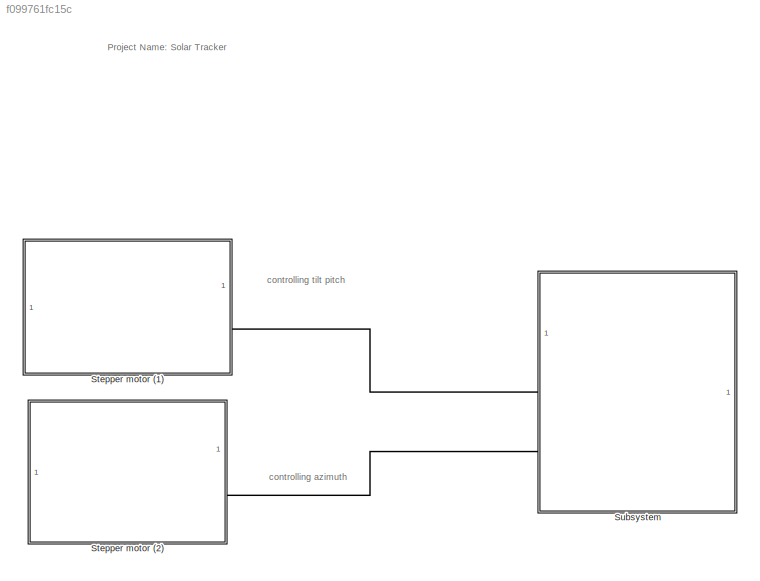
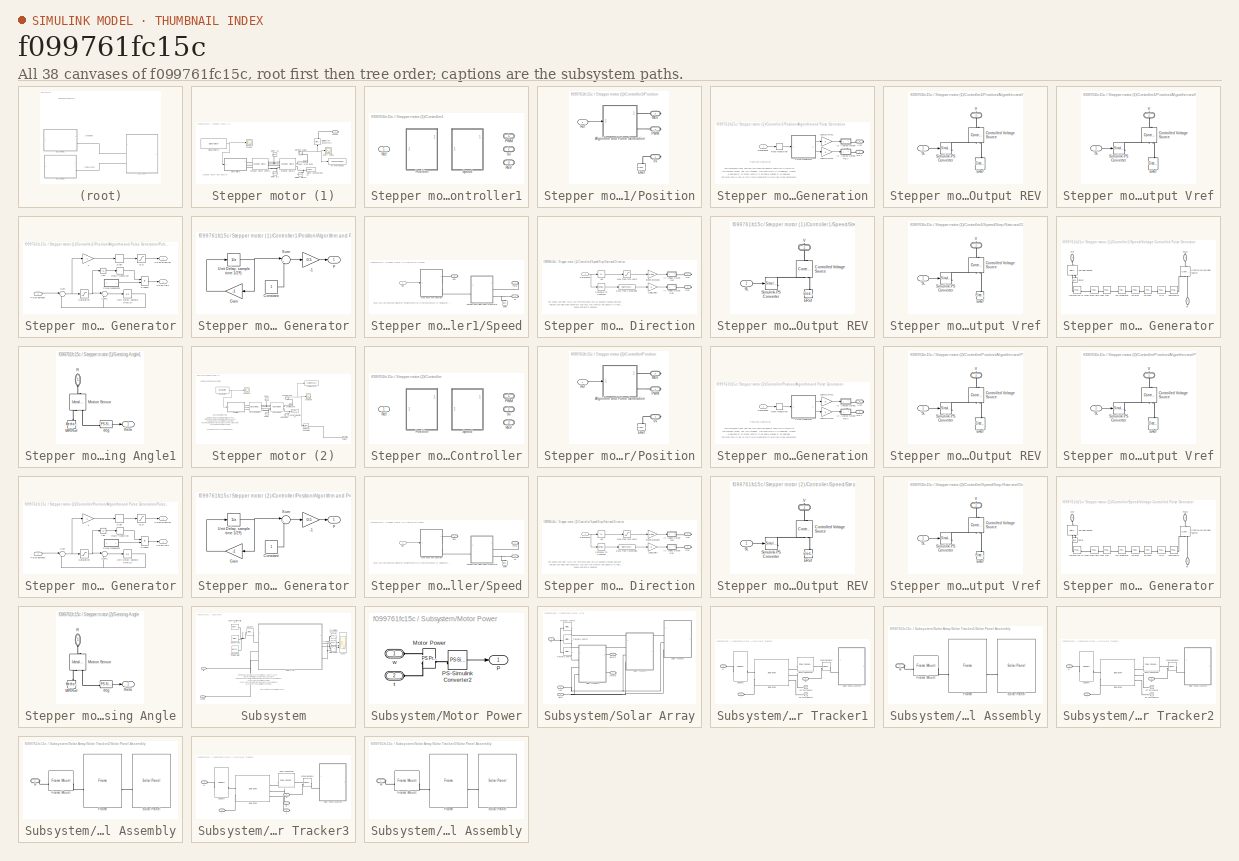
[diagram: thumbnail index - all 38 canvases of the model, root first then tree order]
MODEL slx_f099761fc15c
KIND model
CONFIG AbsTol = auto
CONFIG EnableMultiTasking = off
CONFIG FixedStep = auto
CONFIG MaxStep = 0.01
CONFIG MinStep = auto
CONFIG PreLoadFcn = addpath(fullfile('WormAndGearConstraintSupport','Data'));\naddpath(fullfile('WormAndGearConstraintSupport','Scripts'));
CONFIG RelTol = 1e-3
CONFIG SampleTimeConstraint = Unconstrained
CONFIG SolverName = ode45
CONFIG StartTime = 0.0
CONFIG StopTime = 24
WORKSPACE source: external: MATLAB File  (data not in archive)
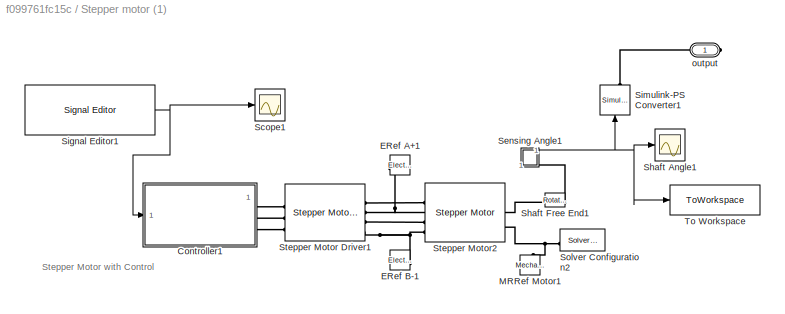
BLOCK [SubSystem] Stepper motor (1)
BLOCK [SubSystem] Stepper motor (1)/Controller1
  AttributesFormatString = %<BlockChoice>
  LabelModeActiveChoice = Position
  Variant = on
  VariantControlMode = label
BLOCK [PMIOPort] Stepper motor (1)/Controller1/0v
  Port = 2
  Side = Right
BLOCK [PMIOPort] Stepper motor (1)/Controller1/PWM
  Side = Right
BLOCK [SubSystem] Stepper motor (1)/Controller1/Position
  VariantControl = Position
BLOCK [PMIOPort] Stepper motor (1)/Controller1/Position/0v
  Port = 2
  Side = Right
BLOCK [SubSystem] Stepper motor (1)/Controller1/Position/Algorithm and Pulse Generation
BLOCK [SubSystem] Stepper motor (1)/Controller1/Position/Algorithm and Pulse Generation/IC Analog Output REV
BLOCK [Reference] Stepper motor (1)/Controller1/Position/Algorithm and Pulse Generation/IC Analog Output REV/Controlled Voltage Source  REF=fl_lib/Electrical/Electrical Sources/Controlled Voltage
Source
  NameLocation = right
  SourceBlock = fl_lib/Electrical/Electrical Sources/Controlled Voltage\nSource
  SourceType = Controlled Voltage\nSource
BLOCK [Reference] Stepper motor (1)/Controller1/Position/Algorithm and Pulse Generation/IC Analog Output REV/ERef  REF=fl_lib/Electrical/Electrical Elements/Electrical Reference
  NameLocation = right
  SourceBlock = fl_lib/Electrical/Electrical Elements/Electrical Reference
  SourceType = Electrical Reference
BLOCK [Inport] Stepper motor (1)/Controller1/Position/Algorithm and Pulse Generation/IC Analog Output REV/SL
BLOCK [Reference] Stepper motor (1)/Controller1/Position/Algorithm and Pulse Generation/IC Analog Output REV/Simulink-PS Converter  REF=nesl_utility/Simulink-PS
Converter
  SourceBlock = nesl_utility/Simulink-PS\nConverter
  SourceType = Simulink-PS\nConverter
BLOCK [PMIOPort] Stepper motor (1)/Controller1/Position/Algorithm and Pulse Generation/IC Analog Output REV/V
  NameLocation = right
  Side = Right
BLOCK [SubSystem] Stepper motor (1)/Controller1/Position/Algorithm and Pulse Generation/IC Analog Output Vref
  NameLocation = top
BLOCK [Reference] Stepper motor (1)/Controller1/Position/Algorithm and Pulse Generation/IC Analog Output Vref/Controlled Voltage Source  REF=fl_lib/Electrical/Electrical Sources/Controlled Voltage
Source
  NameLocation = right
  SourceBlock = fl_lib/Electrical/Electrical Sources/Controlled Voltage\nSource
  SourceType = Controlled Voltage\nSource
BLOCK [Reference] Stepper motor (1)/Controller1/Position/Algorithm and Pulse Generation/IC Analog Output Vref/ERef  REF=fl_lib/Electrical/Electrical Elements/Electrical Reference
  NameLocation = right
  SourceBlock = fl_lib/Electrical/Electrical Elements/Electrical Reference
  SourceType = Electrical Reference
BLOCK [Inport] Stepper motor (1)/Controller1/Position/Algorithm and Pulse Generation/IC Analog Output Vref/SL
BLOCK [Reference] Stepper motor (1)/Controller1/Position/Algorithm and Pulse Generation/IC Analog Output Vref/Simulink-PS Converter  REF=nesl_utility/Simulink-PS
Converter
  SourceBlock = nesl_utility/Simulink-PS\nConverter
  SourceType = Simulink-PS\nConverter
BLOCK [PMIOPort] Stepper motor (1)/Controller1/Position/Algorithm and Pulse Generation/IC Analog Output Vref/V
  NameLocation = right
  Side = Right
BLOCK [Gain] Stepper motor (1)/Controller1/Position/Algorithm and Pulse Generation/Logic2Volts1
  Gain = 5
  NameLocation = top
BLOCK [Gain] Stepper motor (1)/Controller1/Position/Algorithm and Pulse Generation/Logic2Volts2
  Gain = 5
BLOCK [SubSystem] Stepper motor (1)/Controller1/Position/Algorithm and Pulse Generation/Pulse Generator
BLOCK [Gain] Stepper motor (1)/Controller1/Position/Algorithm and Pulse Generation/Pulse Generator/-1
  Gain = -1
BLOCK [Abs] Stepper motor (1)/Controller1/Position/Algorithm and Pulse Generation/Pulse Generator/Abs
  SaturateOnIntegerOverflow = off
BLOCK [Product] Stepper motor (1)/Controller1/Position/Algorithm and Pulse Generation/Pulse Generator/Product
  InputSameDT = on
  OutDataTypeStr = Inherit: Same as first input
  SaturateOnIntegerOverflow = on
BLOCK [Inport] Stepper motor (1)/Controller1/Position/Algorithm and Pulse Generation/Pulse Generator/Pulse  demand
  SampleTime = 1/f
BLOCK [SubSystem] Stepper motor (1)/Controller1/Position/Algorithm and Pulse Generation/Pulse Generator/Pulse Generator
BLOCK [Gain] Stepper motor (1)/Controller1/Position/Algorithm and Pulse Generation/Pulse Generator/Pulse Generator/-1
  Gain = 0.5
BLOCK [Constant] Stepper motor (1)/Controller1/Position/Algorithm and Pulse Generation/Pulse Generator/Pulse Generator/Constant
  SampleTime = 1/(2*f)
BLOCK [Gain] Stepper motor (1)/Controller1/Position/Algorithm and Pulse Generation/Pulse Generator/Pulse Generator/Gain
  Gain = -1
BLOCK [Sum] Stepper motor (1)/Controller1/Position/Algorithm and Pulse Generation/Pulse Generator/Pulse Generator/Sum
  Inputs = |++
BLOCK [UnitDelay] Stepper motor (1)/Controller1/Position/Algorithm and Pulse Generation/Pulse Generator/Pulse Generator/Unit Delay, sample time 1//2*f)
  HasFrameUpgradeWarning = on
  InitialCondition = -1
  SampleTime = 1/(2*f)
BLOCK [Outport] Stepper motor (1)/Controller1/Position/Algorithm and Pulse Generation/Pulse Generator/Pulse Generator/p
  VectorParamsAs1DForOutWhenUnconnected = off
BLOCK [Outport] Stepper motor (1)/Controller1/Position/Algorithm and Pulse Generation/Pulse Generator/Pulse direction
  Port = 2
  VectorParamsAs1DForOutWhenUnconnected = off
BLOCK [Outport] Stepper motor (1)/Controller1/Position/Algorithm and Pulse Generation/Pulse Generator/Pulse train
  VectorParamsAs1DForOutWhenUnconnected = off
BLOCK [RateTransition] Stepper motor (1)/Controller1/Position/Algorithm and Pulse Generation/Pulse Generator/Rate Transition
  Deterministic = off
BLOCK [Saturate] Stepper motor (1)/Controller1/Position/Algorithm and Pulse Generation/Pulse Generator/Saturation
  LowerLimit = -1
  UpperLimit = 1
BLOCK [Signum] Stepper motor (1)/Controller1/Position/Algorithm and Pulse Generation/Pulse Generator/Sign
BLOCK [Sum] Stepper motor (1)/Controller1/Position/Algorithm and Pulse Generation/Pulse Generator/Sum
  Inputs = |+-
BLOCK [Sum] Stepper motor (1)/Controller1/Position/Algorithm and Pulse Generation/Pulse Generator/Sum1
  Inputs = |++
BLOCK [UnitDelay] Stepper motor (1)/Controller1/Position/Algorithm and Pulse Generation/Pulse Generator/Unit Delay, sample time 1//f
  HasFrameUpgradeWarning = on
  SampleTime = 1/f
BLOCK [Saturate] Stepper motor (1)/Controller1/Position/Algorithm and Pulse Generation/Pulse Generator/[0,1]
  LowerLimit = 0
  UpperLimit = 1
BLOCK [PMIOPort] Stepper motor (1)/Controller1/Position/Algorithm and Pulse Generation/REV
  Side = Right
BLOCK [RateTransition] Stepper motor (1)/Controller1/Position/Algorithm and Pulse Generation/Rate Transition
  Deterministic = off
  NameLocation = top
BLOCK [Inport] Stepper motor (1)/Controller1/Position/Algorithm and Pulse Generation/Reference
BLOCK [PMIOPort] Stepper motor (1)/Controller1/Position/Algorithm and Pulse Generation/Vref
  NameLocation = top
  Port = 2
  Side = Right
BLOCK [Reference] Stepper motor (1)/Controller1/Position/ERef  REF=fl_lib/Electrical/Electrical Elements/Electrical Reference
  NameLocation = left
  SourceBlock = fl_lib/Electrical/Electrical Elements/Electrical Reference
  SourceType = Electrical Reference
BLOCK [PMIOPort] Stepper motor (1)/Controller1/Position/PWM
  Side = Right
BLOCK [PMIOPort] Stepper motor (1)/Controller1/Position/REV
  NameLocation = top
  Port = 3
  Side = Right
BLOCK [Inport] Stepper motor (1)/Controller1/Position/Ref
BLOCK [PMIOPort] Stepper motor (1)/Controller1/REV
  Port = 3
  Side = Right
BLOCK [Inport] Stepper motor (1)/Controller1/Ref
BLOCK [SubSystem] Stepper motor (1)/Controller1/Speed
  VariantControl = Speed
BLOCK [PMIOPort] Stepper motor (1)/Controller1/Speed/0v
  Port = 2
  Side = Right
BLOCK [Reference] Stepper motor (1)/Controller1/Speed/ERef  REF=fl_lib/Electrical/Electrical Elements/Electrical Reference
  NameLocation = right
  SourceBlock = fl_lib/Electrical/Electrical Elements/Electrical Reference
  SourceType = Electrical Reference
BLOCK [PMIOPort] Stepper motor (1)/Controller1/Speed/PWM
  Side = Right
BLOCK [PMIOPort] Stepper motor (1)/Controller1/Speed/REV
  Port = 3
  Side = Right
BLOCK [Inport] Stepper motor (1)/Controller1/Speed/Ref
BLOCK [SubSystem] Stepper motor (1)/Controller1/Speed/Step Rate and Direction
BLOCK [Abs] Stepper motor (1)/Controller1/Speed/Step Rate and Direction/Abs
  SaturateOnIntegerOverflow = off
BLOCK [Reference] Stepper motor (1)/Controller1/Speed/Step Rate and Direction/Compare To Constant  REF=simulink/Logic and Bit
Operations/Compare
To Constant
  SourceBlock = simulink/Logic and Bit\nOperations/Compare\nTo Constant
  SourceType = Compare To Constant
BLOCK [DataTypeConversion] Stepper motor (1)/Controller1/Speed/Step Rate and Direction/Data Type Conversion
  RndMeth = Floor
  SaturateOnIntegerOverflow = off
BLOCK [SubSystem] Stepper motor (1)/Controller1/Speed/Step Rate and Direction/IC Analog Output REV
BLOCK [Reference] Stepper motor (1)/Controller1/Speed/Step Rate and Direction/IC Analog Output REV/Controlled Voltage Source  REF=fl_lib/Electrical/Electrical Sources/Controlled Voltage
Source
  NameLocation = right
  SourceBlock = fl_lib/Electrical/Electrical Sources/Controlled Voltage\nSource
  SourceType = Controlled Voltage\nSource
BLOCK [Reference] Stepper motor (1)/Controller1/Speed/Step Rate and Direction/IC Analog Output REV/ERef  REF=fl_lib/Electrical/Electrical Elements/Electrical Reference
  NameLocation = right
  SourceBlock = fl_lib/Electrical/Electrical Elements/Electrical Reference
  SourceType = Electrical Reference
BLOCK [Inport] Stepper motor (1)/Controller1/Speed/Step Rate and Direction/IC Analog Output REV/SL
BLOCK [Reference] Stepper motor (1)/Controller1/Speed/Step Rate and Direction/IC Analog Output REV/Simulink-PS Converter  REF=nesl_utility/Simulink-PS
Converter
  SourceBlock = nesl_utility/Simulink-PS\nConverter
  SourceType = Simulink-PS\nConverter
BLOCK [PMIOPort] Stepper motor (1)/Controller1/Speed/Step Rate and Direction/IC Analog Output REV/V
  NameLocation = right
  Side = Right
BLOCK [SubSystem] Stepper motor (1)/Controller1/Speed/Step Rate and Direction/IC Analog Output Vref
BLOCK [Reference] Stepper motor (1)/Controller1/Speed/Step Rate and Direction/IC Analog Output Vref/Controlled Voltage Source  REF=fl_lib/Electrical/Electrical Sources/Controlled Voltage
Source
  NameLocation = right
  SourceBlock = fl_lib/Electrical/Electrical Sources/Controlled Voltage\nSource
  SourceType = Controlled Voltage\nSource
BLOCK [Reference] Stepper motor (1)/Controller1/Speed/Step Rate and Direction/IC Analog Output Vref/ERef  REF=fl_lib/Electrical/Electrical Elements/Electrical Reference
  NameLocation = right
  SourceBlock = fl_lib/Electrical/Electrical Elements/Electrical Reference
  SourceType = Electrical Reference
BLOCK [Inport] Stepper motor (1)/Controller1/Speed/Step Rate and Direction/IC Analog Output Vref/SL
BLOCK [Reference] Stepper motor (1)/Controller1/Speed/Step Rate and Direction/IC Analog Output Vref/Simulink-PS Converter  REF=nesl_utility/Simulink-PS
Converter
  SourceBlock = nesl_utility/Simulink-PS\nConverter
  SourceType = Simulink-PS\nConverter
BLOCK [PMIOPort] Stepper motor (1)/Controller1/Speed/Step Rate and Direction/IC Analog Output Vref/V
  NameLocation = right
  Side = Right
BLOCK [Gain] Stepper motor (1)/Controller1/Speed/Step Rate and Direction/Logic2Volts
  Gain = 5
BLOCK [Saturate] Stepper motor (1)/Controller1/Speed/Step Rate and Direction/Max step rate 100//s
  LowerLimit = 0
  UpperLimit = 100
BLOCK [PMIOPort] Stepper motor (1)/Controller1/Speed/Step Rate and Direction/REV
  Side = Right
BLOCK [Inport] Stepper motor (1)/Controller1/Speed/Step Rate and Direction/Reference
  NameLocation = top
BLOCK [Gain] Stepper motor (1)/Controller1/Speed/Step Rate and Direction/StepRate2Volts
  Gain = 5/100
BLOCK [PMIOPort] Stepper motor (1)/Controller1/Speed/Step Rate and Direction/Vref
  Port = 2
  Side = Right
BLOCK [SubSystem] Stepper motor (1)/Controller1/Speed/Voltage-Controlled Pulse Generator
BLOCK [PMIOPort] Stepper motor (1)/Controller1/Speed/Voltage-Controlled Pulse Generator/0v
  NameLocation = left
  Port = 2
  Side = Right
BLOCK [Reference] Stepper motor (1)/Controller1/Speed/Voltage-Controlled Pulse Generator/2*pi  REF=fl_ps_legacy_lib/Legacy Physical
Signals/Functions/PS Gain
  SourceBlock = fl_ps_legacy_lib/Legacy Physical\nSignals/Functions/PS Gain
  SourceType = PS Gain
BLOCK [Reference] Stepper motor (1)/Controller1/Speed/Voltage-Controlled Pulse Generator/Controlled Voltage Source  REF=fl_lib/Electrical/Electrical Sources/Controlled Voltage
Source
  NameLocation = left
  SourceBlock = fl_lib/Electrical/Electrical Sources/Controlled Voltage\nSource
  SourceType = Controlled Voltage\nSource
BLOCK [Reference] Stepper motor (1)/Controller1/Speed/Voltage-Controlled Pulse Generator/ERef  REF=fl_lib/Electrical/Electrical Elements/Electrical Reference
  NameLocation = right
  SourceBlock = fl_lib/Electrical/Electrical Elements/Electrical Reference
  SourceType = Electrical Reference
BLOCK [Reference] Stepper motor (1)/Controller1/Speed/Voltage-Controlled Pulse Generator/Max step rate =100  REF=fl_ps_legacy_lib/Legacy Physical
Signals/Functions/PS Gain
  NameLocation = top
  SourceBlock = fl_ps_legacy_lib/Legacy Physical\nSignals/Functions/PS Gain
  SourceType = PS Gain
BLOCK [Reference] Stepper motor (1)/Controller1/Speed/Voltage-Controlled Pulse Generator/Normalize to 1  REF=fl_ps_legacy_lib/Legacy Physical
Signals/Functions/PS Gain
  SourceBlock = fl_ps_legacy_lib/Legacy Physical\nSignals/Functions/PS Gain
  SourceType = PS Gain
BLOCK [Reference] Stepper motor (1)/Controller1/Speed/Voltage-Controlled Pulse Generator/PS Integrator  REF=fl_ps_legacy_lib/Legacy Physical
Signals/Linear Operators/PS Integrator
  NameLocation = top
  SourceBlock = fl_ps_legacy_lib/Legacy Physical\nSignals/Linear Operators/PS Integrator
  SourceType = PS Integrator
BLOCK [Reference] Stepper motor (1)/Controller1/Speed/Voltage-Controlled Pulse Generator/PS Sign  REF=fl_ps_legacy_lib/Legacy Physical
Signals/Nonlinear Operators/PS Sign
  SourceBlock = fl_ps_legacy_lib/Legacy Physical\nSignals/Nonlinear Operators/PS Sign
  SourceType = PS Sign
BLOCK [Reference] Stepper motor (1)/Controller1/Speed/Voltage-Controlled Pulse Generator/PS Sine  REF=fl_ps_legacy_lib/Legacy Physical
Signals/Functions/PS Math Function
  SourceBlock = fl_ps_legacy_lib/Legacy Physical\nSignals/Functions/PS Math Function
  SourceType = PS Math Function
BLOCK [PMIOPort] Stepper motor (1)/Controller1/Speed/Voltage-Controlled Pulse Generator/PWM
  NameLocation = left
  Side = Right
BLOCK [Reference] Stepper motor (1)/Controller1/Speed/Voltage-Controlled Pulse Generator/Voltage Sensor  REF=fl_lib/Electrical/Electrical Sensors/Voltage Sensor
  NameLocation = right
  SourceBlock = fl_lib/Electrical/Electrical Sensors/Voltage Sensor
  SourceType = Voltage Sensor
BLOCK [PMIOPort] Stepper motor (1)/Controller1/Speed/Voltage-Controlled Pulse Generator/Vref
  NameLocation = right
  Port = 3
  Side = Left
BLOCK [Reference] Stepper motor (1)/Controller1/Speed/Voltage-Controlled Pulse Generator/[0,1]  REF=fl_ps_legacy_lib/Legacy Physical
Signals/Nonlinear Operators/PS Saturation
  SourceBlock = fl_ps_legacy_lib/Legacy Physical\nSignals/Nonlinear Operators/PS Saturation
  SourceType = PS Saturation
BLOCK [Reference] Stepper motor (1)/Controller1/Speed/Voltage-Controlled Pulse Generator/logic2volts  REF=fl_ps_legacy_lib/Legacy Physical
Signals/Functions/PS Gain
  SourceBlock = fl_ps_legacy_lib/Legacy Physical\nSignals/Functions/PS Gain
  SourceType = PS Gain
BLOCK [Reference] Stepper motor (1)/ERef A+1  REF=fl_lib/Electrical/Electrical Elements/Electrical Reference
  NameLocation = top
  SourceBlock = fl_lib/Electrical/Electrical Elements/Electrical Reference
  SourceType = Electrical Reference
BLOCK [Reference] Stepper motor (1)/ERef B-1  REF=fl_lib/Electrical/Electrical Elements/Electrical Reference
  SourceBlock = fl_lib/Electrical/Electrical Elements/Electrical Reference
  SourceType = Electrical Reference
BLOCK [Reference] Stepper motor (1)/MRRef Motor1  REF=fl_lib/Mechanical/Rotational Elements/Mechanical
Rotational Reference
  NameLocation = left
  SourceBlock = fl_lib/Mechanical/Rotational Elements/Mechanical\nRotational Reference
  SourceType = Mechanical\nRotational Reference
BLOCK [Scope] Stepper motor (1)/Scope1
  Floating = off
  NumInputPorts = 1
  ScopeSpecificationString = Simulink.scopes.TimeScopeBlockCfg('CurrentConfiguration', extmgr.ConfigurationSet(extmgr.Configuration('Core','General UI',true),extmgr.Configuration('Core','Source UI',true),extmgr.Configuration('Sources','WiredSimulink',true,'DataLoggingVariableName','ScopeData4'),extmgr.Configuration('Visuals','Time Domain',true,'SerializedDisplays',{struct('MinYLimReal','-6.25','MaxYLimReal','56.25','YLabelRea...<+1481ch>
BLOCK [SubSystem] Stepper motor (1)/Sensing Angle1
  NameLocation = left
BLOCK [Reference] Stepper motor (1)/Sensing Angle1/MRRef  REF=fl_lib/Mechanical/Rotational Elements/Mechanical
Rotational Reference
  NameLocation = left
  SourceBlock = fl_lib/Mechanical/Rotational Elements/Mechanical\nRotational Reference
  SourceType = Mechanical\nRotational Reference
BLOCK [Reference] Stepper motor (1)/Sensing Angle1/Motion Sensor  REF=fl_lib/Mechanical/Mechanical Sensors/Ideal Rotational
Motion Sensor
  NameLocation = left
  SourceBlock = fl_lib/Mechanical/Mechanical Sensors/Ideal Rotational\nMotion Sensor
  SourceType = Ideal Rotational\nMotion Sensor
BLOCK [PMIOPort] Stepper motor (1)/Sensing Angle1/R
  NameLocation = left
  Side = Left
BLOCK [Reference] Stepper motor (1)/Sensing Angle1/deg  REF=nesl_utility/PS-Simulink
Converter
  SourceBlock = nesl_utility/PS-Simulink\nConverter
  SourceType = PS-Simulink\nConverter
BLOCK [Outport] Stepper motor (1)/Sensing Angle1/theta
  VectorParamsAs1DForOutWhenUnconnected = off
BLOCK [Scope] Stepper motor (1)/Shaft Angle1
  Floating = off
  NumInputPorts = 1
  ScopeSpecificationString = Simulink.scopes.TimeScopeBlockCfg('CurrentConfiguration', extmgr.ConfigurationSet(extmgr.Configuration('Core','General UI',true),extmgr.Configuration('Core','Source UI',true),extmgr.Configuration('Sources','WiredSimulink',true,'DataLogging',true,'DataLoggingVariableName','ScopeData6','DataLoggingSaveFormat','StructureWithTime','DataLoggingDecimation','1','DataLoggingDecimateData',true),extmgr.Conf...<+1894ch>
BLOCK [Reference] Stepper motor (1)/Shaft Free End1  REF=fl_lib/Mechanical/Rotational Elements/Rotational Free End
  SourceBlock = fl_lib/Mechanical/Rotational Elements/Rotational Free End
  SourceType = Rotational Free End
BLOCK [Reference] Stepper motor (1)/Signal Editor1  REF=SignalEditorBlockLib/Signal Editor
  LibrarySourceBlock = simulink/Sources/Signal Editor
  SourceBlock = SignalEditorBlockLib/Signal Editor
  SourceType = SignalEditor
  UserDataPersistent = on
BLOCK [Reference] Stepper motor (1)/Simulink-PS Converter1  REF=nesl_utility/Simulink-PS
Converter
  NameLocation = right
  SourceBlock = nesl_utility/Simulink-PS\nConverter
  SourceType = Simulink-PS\nConverter
BLOCK [Reference] Stepper motor (1)/Solver Configuration2  REF=nesl_utility/Solver
Configuration
  SourceBlock = nesl_utility/Solver\nConfiguration
  SourceType = Solver\nConfiguration
BLOCK [Reference] Stepper motor (1)/Stepper Motor Driver1  REF=ee_lib/Electromechanical/Reluctance & Stepper/Stepper Motor Driver
  SourceBlock = ee_lib/Electromechanical/Reluctance & Stepper/Stepper Motor Driver
  SourceType = Stepper Motor Driver
BLOCK [Reference] Stepper motor (1)/Stepper Motor2  REF=ee_lib/Electromechanical/Reluctance & Stepper/Stepper Motor
  SourceBlock = ee_lib/Electromechanical/Reluctance & Stepper/Stepper Motor
  SourceType = Stepper Motor
BLOCK [ToWorkspace] Stepper motor (1)/To Workspace
  FixptAsFi = on
  MaxDataPoints = inf
  SampleTime = -1
  VariableName = panel_tilt
BLOCK [PMIOPort] Stepper motor (1)/output
  Side = Right
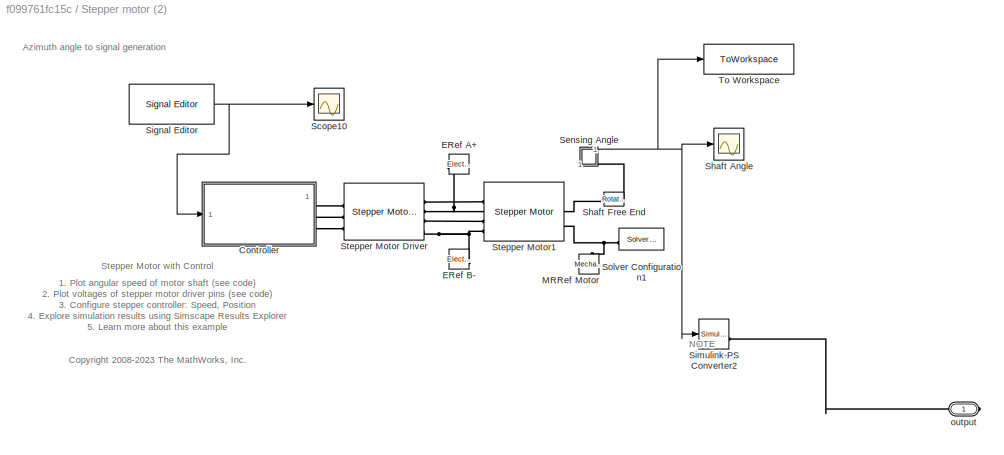
BLOCK [SubSystem] Stepper motor (2)
BLOCK [SubSystem] Stepper motor (2)/Controller
  AttributesFormatString = %<BlockChoice>
  LabelModeActiveChoice = Position
  Variant = on
  VariantControlMode = label
BLOCK [PMIOPort] Stepper motor (2)/Controller/0v
  Port = 2
  Side = Right
BLOCK [PMIOPort] Stepper motor (2)/Controller/PWM
  Side = Right
BLOCK [SubSystem] Stepper motor (2)/Controller/Position
  VariantControl = Position
BLOCK [PMIOPort] Stepper motor (2)/Controller/Position/0v
  Port = 2
  Side = Right
BLOCK [SubSystem] Stepper motor (2)/Controller/Position/Algorithm and Pulse Generation
BLOCK [SubSystem] Stepper motor (2)/Controller/Position/Algorithm and Pulse Generation/IC Analog Output REV
BLOCK [Reference] Stepper motor (2)/Controller/Position/Algorithm and Pulse Generation/IC Analog Output REV/Controlled Voltage Source  REF=fl_lib/Electrical/Electrical Sources/Controlled Voltage
Source
  NameLocation = right
  SourceBlock = fl_lib/Electrical/Electrical Sources/Controlled Voltage\nSource
  SourceType = Controlled Voltage\nSource
BLOCK [Reference] Stepper motor (2)/Controller/Position/Algorithm and Pulse Generation/IC Analog Output REV/ERef  REF=fl_lib/Electrical/Electrical Elements/Electrical Reference
  NameLocation = right
  SourceBlock = fl_lib/Electrical/Electrical Elements/Electrical Reference
  SourceType = Electrical Reference
BLOCK [Inport] Stepper motor (2)/Controller/Position/Algorithm and Pulse Generation/IC Analog Output REV/SL
BLOCK [Reference] Stepper motor (2)/Controller/Position/Algorithm and Pulse Generation/IC Analog Output REV/Simulink-PS Converter  REF=nesl_utility/Simulink-PS
Converter
  SourceBlock = nesl_utility/Simulink-PS\nConverter
  SourceType = Simulink-PS\nConverter
BLOCK [PMIOPort] Stepper motor (2)/Controller/Position/Algorithm and Pulse Generation/IC Analog Output REV/V
  NameLocation = right
  Side = Right
BLOCK [SubSystem] Stepper motor (2)/Controller/Position/Algorithm and Pulse Generation/IC Analog Output Vref
  NameLocation = top
BLOCK [Reference] Stepper motor (2)/Controller/Position/Algorithm and Pulse Generation/IC Analog Output Vref/Controlled Voltage Source  REF=fl_lib/Electrical/Electrical Sources/Controlled Voltage
Source
  NameLocation = right
  SourceBlock = fl_lib/Electrical/Electrical Sources/Controlled Voltage\nSource
  SourceType = Controlled Voltage\nSource
BLOCK [Reference] Stepper motor (2)/Controller/Position/Algorithm and Pulse Generation/IC Analog Output Vref/ERef  REF=fl_lib/Electrical/Electrical Elements/Electrical Reference
  NameLocation = right
  SourceBlock = fl_lib/Electrical/Electrical Elements/Electrical Reference
  SourceType = Electrical Reference
BLOCK [Inport] Stepper motor (2)/Controller/Position/Algorithm and Pulse Generation/IC Analog Output Vref/SL
BLOCK [Reference] Stepper motor (2)/Controller/Position/Algorithm and Pulse Generation/IC Analog Output Vref/Simulink-PS Converter  REF=nesl_utility/Simulink-PS
Converter
  SourceBlock = nesl_utility/Simulink-PS\nConverter
  SourceType = Simulink-PS\nConverter
BLOCK [PMIOPort] Stepper motor (2)/Controller/Position/Algorithm and Pulse Generation/IC Analog Output Vref/V
  NameLocation = right
  Side = Right
BLOCK [Gain] Stepper motor (2)/Controller/Position/Algorithm and Pulse Generation/Logic2Volts1
  Gain = 5
  NameLocation = top
BLOCK [Gain] Stepper motor (2)/Controller/Position/Algorithm and Pulse Generation/Logic2Volts2
  Gain = 5
BLOCK [SubSystem] Stepper motor (2)/Controller/Position/Algorithm and Pulse Generation/Pulse Generator
BLOCK [Gain] Stepper motor (2)/Controller/Position/Algorithm and Pulse Generation/Pulse Generator/-1
  Gain = -1
BLOCK [Abs] Stepper motor (2)/Controller/Position/Algorithm and Pulse Generation/Pulse Generator/Abs
  SaturateOnIntegerOverflow = off
BLOCK [Product] Stepper motor (2)/Controller/Position/Algorithm and Pulse Generation/Pulse Generator/Product
  InputSameDT = on
  OutDataTypeStr = Inherit: Same as first input
  SaturateOnIntegerOverflow = on
BLOCK [Inport] Stepper motor (2)/Controller/Position/Algorithm and Pulse Generation/Pulse Generator/Pulse  demand
  SampleTime = 1/f
BLOCK [SubSystem] Stepper motor (2)/Controller/Position/Algorithm and Pulse Generation/Pulse Generator/Pulse Generator
BLOCK [Gain] Stepper motor (2)/Controller/Position/Algorithm and Pulse Generation/Pulse Generator/Pulse Generator/-1
  Gain = 0.5
BLOCK [Constant] Stepper motor (2)/Controller/Position/Algorithm and Pulse Generation/Pulse Generator/Pulse Generator/Constant
  SampleTime = 1/(2*f)
BLOCK [Gain] Stepper motor (2)/Controller/Position/Algorithm and Pulse Generation/Pulse Generator/Pulse Generator/Gain
  Gain = -1
BLOCK [Sum] Stepper motor (2)/Controller/Position/Algorithm and Pulse Generation/Pulse Generator/Pulse Generator/Sum
  Inputs = |++
BLOCK [UnitDelay] Stepper motor (2)/Controller/Position/Algorithm and Pulse Generation/Pulse Generator/Pulse Generator/Unit Delay, sample time 1//2*f)
  HasFrameUpgradeWarning = on
  InitialCondition = -1
  SampleTime = 1/(2*f)
BLOCK [Outport] Stepper motor (2)/Controller/Position/Algorithm and Pulse Generation/Pulse Generator/Pulse Generator/p
  VectorParamsAs1DForOutWhenUnconnected = off
BLOCK [Outport] Stepper motor (2)/Controller/Position/Algorithm and Pulse Generation/Pulse Generator/Pulse direction
  Port = 2
  VectorParamsAs1DForOutWhenUnconnected = off
BLOCK [Outport] Stepper motor (2)/Controller/Position/Algorithm and Pulse Generation/Pulse Generator/Pulse train
  VectorParamsAs1DForOutWhenUnconnected = off
BLOCK [RateTransition] Stepper motor (2)/Controller/Position/Algorithm and Pulse Generation/Pulse Generator/Rate Transition
  Deterministic = off
BLOCK [Saturate] Stepper motor (2)/Controller/Position/Algorithm and Pulse Generation/Pulse Generator/Saturation
  LowerLimit = -1
  UpperLimit = 1
BLOCK [Signum] Stepper motor (2)/Controller/Position/Algorithm and Pulse Generation/Pulse Generator/Sign
BLOCK [Sum] Stepper motor (2)/Controller/Position/Algorithm and Pulse Generation/Pulse Generator/Sum
  Inputs = |+-
BLOCK [Sum] Stepper motor (2)/Controller/Position/Algorithm and Pulse Generation/Pulse Generator/Sum1
  Inputs = |++
BLOCK [UnitDelay] Stepper motor (2)/Controller/Position/Algorithm and Pulse Generation/Pulse Generator/Unit Delay, sample time 1//f
  HasFrameUpgradeWarning = on
  SampleTime = 1/f
BLOCK [Saturate] Stepper motor (2)/Controller/Position/Algorithm and Pulse Generation/Pulse Generator/[0,1]
  LowerLimit = 0
  UpperLimit = 1
BLOCK [PMIOPort] Stepper motor (2)/Controller/Position/Algorithm and Pulse Generation/REV
  Side = Right
BLOCK [RateTransition] Stepper motor (2)/Controller/Position/Algorithm and Pulse Generation/Rate Transition
  Deterministic = off
  NameLocation = top
BLOCK [Inport] Stepper motor (2)/Controller/Position/Algorithm and Pulse Generation/Reference
BLOCK [PMIOPort] Stepper motor (2)/Controller/Position/Algorithm and Pulse Generation/Vref
  NameLocation = top
  Port = 2
  Side = Right
BLOCK [Reference] Stepper motor (2)/Controller/Position/ERef  REF=fl_lib/Electrical/Electrical Elements/Electrical Reference
  NameLocation = left
  SourceBlock = fl_lib/Electrical/Electrical Elements/Electrical Reference
  SourceType = Electrical Reference
BLOCK [PMIOPort] Stepper motor (2)/Controller/Position/PWM
  Side = Right
BLOCK [PMIOPort] Stepper motor (2)/Controller/Position/REV
  NameLocation = top
  Port = 3
  Side = Right
BLOCK [Inport] Stepper motor (2)/Controller/Position/Ref
BLOCK [PMIOPort] Stepper motor (2)/Controller/REV
  Port = 3
  Side = Right
BLOCK [Inport] Stepper motor (2)/Controller/Ref
BLOCK [SubSystem] Stepper motor (2)/Controller/Speed
  VariantControl = Speed
BLOCK [PMIOPort] Stepper motor (2)/Controller/Speed/0v
  Port = 2
  Side = Right
BLOCK [Reference] Stepper motor (2)/Controller/Speed/ERef  REF=fl_lib/Electrical/Electrical Elements/Electrical Reference
  NameLocation = right
  SourceBlock = fl_lib/Electrical/Electrical Elements/Electrical Reference
  SourceType = Electrical Reference
BLOCK [PMIOPort] Stepper motor (2)/Controller/Speed/PWM
  Side = Right
BLOCK [PMIOPort] Stepper motor (2)/Controller/Speed/REV
  Port = 3
  Side = Right
BLOCK [Inport] Stepper motor (2)/Controller/Speed/Ref
BLOCK [SubSystem] Stepper motor (2)/Controller/Speed/Step Rate and Direction
BLOCK [Abs] Stepper motor (2)/Controller/Speed/Step Rate and Direction/Abs
  SaturateOnIntegerOverflow = off
BLOCK [Reference] Stepper motor (2)/Controller/Speed/Step Rate and Direction/Compare To Constant  REF=simulink/Logic and Bit
Operations/Compare
To Constant
  SourceBlock = simulink/Logic and Bit\nOperations/Compare\nTo Constant
  SourceType = Compare To Constant
BLOCK [DataTypeConversion] Stepper motor (2)/Controller/Speed/Step Rate and Direction/Data Type Conversion
  RndMeth = Floor
  SaturateOnIntegerOverflow = off
BLOCK [SubSystem] Stepper motor (2)/Controller/Speed/Step Rate and Direction/IC Analog Output REV
BLOCK [Reference] Stepper motor (2)/Controller/Speed/Step Rate and Direction/IC Analog Output REV/Controlled Voltage Source  REF=fl_lib/Electrical/Electrical Sources/Controlled Voltage
Source
  NameLocation = right
  SourceBlock = fl_lib/Electrical/Electrical Sources/Controlled Voltage\nSource
  SourceType = Controlled Voltage\nSource
BLOCK [Reference] Stepper motor (2)/Controller/Speed/Step Rate and Direction/IC Analog Output REV/ERef  REF=fl_lib/Electrical/Electrical Elements/Electrical Reference
  NameLocation = right
  SourceBlock = fl_lib/Electrical/Electrical Elements/Electrical Reference
  SourceType = Electrical Reference
BLOCK [Inport] Stepper motor (2)/Controller/Speed/Step Rate and Direction/IC Analog Output REV/SL
BLOCK [Reference] Stepper motor (2)/Controller/Speed/Step Rate and Direction/IC Analog Output REV/Simulink-PS Converter  REF=nesl_utility/Simulink-PS
Converter
  SourceBlock = nesl_utility/Simulink-PS\nConverter
  SourceType = Simulink-PS\nConverter
BLOCK [PMIOPort] Stepper motor (2)/Controller/Speed/Step Rate and Direction/IC Analog Output REV/V
  NameLocation = right
  Side = Right
BLOCK [SubSystem] Stepper motor (2)/Controller/Speed/Step Rate and Direction/IC Analog Output Vref
BLOCK [Reference] Stepper motor (2)/Controller/Speed/Step Rate and Direction/IC Analog Output Vref/Controlled Voltage Source  REF=fl_lib/Electrical/Electrical Sources/Controlled Voltage
Source
  NameLocation = right
  SourceBlock = fl_lib/Electrical/Electrical Sources/Controlled Voltage\nSource
  SourceType = Controlled Voltage\nSource
BLOCK [Reference] Stepper motor (2)/Controller/Speed/Step Rate and Direction/IC Analog Output Vref/ERef  REF=fl_lib/Electrical/Electrical Elements/Electrical Reference
  NameLocation = right
  SourceBlock = fl_lib/Electrical/Electrical Elements/Electrical Reference
  SourceType = Electrical Reference
BLOCK [Inport] Stepper motor (2)/Controller/Speed/Step Rate and Direction/IC Analog Output Vref/SL
BLOCK [Reference] Stepper motor (2)/Controller/Speed/Step Rate and Direction/IC Analog Output Vref/Simulink-PS Converter  REF=nesl_utility/Simulink-PS
Converter
  SourceBlock = nesl_utility/Simulink-PS\nConverter
  SourceType = Simulink-PS\nConverter
BLOCK [PMIOPort] Stepper motor (2)/Controller/Speed/Step Rate and Direction/IC Analog Output Vref/V
  NameLocation = right
  Side = Right
BLOCK [Gain] Stepper motor (2)/Controller/Speed/Step Rate and Direction/Logic2Volts
  Gain = 5
BLOCK [Saturate] Stepper motor (2)/Controller/Speed/Step Rate and Direction/Max step rate 100//s
  LowerLimit = 0
  UpperLimit = 100
BLOCK [PMIOPort] Stepper motor (2)/Controller/Speed/Step Rate and Direction/REV
  Side = Right
BLOCK [Inport] Stepper motor (2)/Controller/Speed/Step Rate and Direction/Reference
  NameLocation = top
BLOCK [Gain] Stepper motor (2)/Controller/Speed/Step Rate and Direction/StepRate2Volts
  Gain = 5/100
BLOCK [PMIOPort] Stepper motor (2)/Controller/Speed/Step Rate and Direction/Vref
  Port = 2
  Side = Right
BLOCK [SubSystem] Stepper motor (2)/Controller/Speed/Voltage-Controlled Pulse Generator
BLOCK [PMIOPort] Stepper motor (2)/Controller/Speed/Voltage-Controlled Pulse Generator/0v
  NameLocation = left
  Port = 2
  Side = Right
BLOCK [Reference] Stepper motor (2)/Controller/Speed/Voltage-Controlled Pulse Generator/2*pi  REF=fl_ps_legacy_lib/Legacy Physical
Signals/Functions/PS Gain
  SourceBlock = fl_ps_legacy_lib/Legacy Physical\nSignals/Functions/PS Gain
  SourceType = PS Gain
BLOCK [Reference] Stepper motor (2)/Controller/Speed/Voltage-Controlled Pulse Generator/Controlled Voltage Source  REF=fl_lib/Electrical/Electrical Sources/Controlled Voltage
Source
  NameLocation = left
  SourceBlock = fl_lib/Electrical/Electrical Sources/Controlled Voltage\nSource
  SourceType = Controlled Voltage\nSource
BLOCK [Reference] Stepper motor (2)/Controller/Speed/Voltage-Controlled Pulse Generator/ERef  REF=fl_lib/Electrical/Electrical Elements/Electrical Reference
  NameLocation = right
  SourceBlock = fl_lib/Electrical/Electrical Elements/Electrical Reference
  SourceType = Electrical Reference
BLOCK [Reference] Stepper motor (2)/Controller/Speed/Voltage-Controlled Pulse Generator/Max step rate =100  REF=fl_ps_legacy_lib/Legacy Physical
Signals/Functions/PS Gain
  NameLocation = top
  SourceBlock = fl_ps_legacy_lib/Legacy Physical\nSignals/Functions/PS Gain
  SourceType = PS Gain
BLOCK [Reference] Stepper motor (2)/Controller/Speed/Voltage-Controlled Pulse Generator/Normalize to 1  REF=fl_ps_legacy_lib/Legacy Physical
Signals/Functions/PS Gain
  SourceBlock = fl_ps_legacy_lib/Legacy Physical\nSignals/Functions/PS Gain
  SourceType = PS Gain
BLOCK [Reference] Stepper motor (2)/Controller/Speed/Voltage-Controlled Pulse Generator/PS Integrator  REF=fl_ps_legacy_lib/Legacy Physical
Signals/Linear Operators/PS Integrator
  NameLocation = top
  SourceBlock = fl_ps_legacy_lib/Legacy Physical\nSignals/Linear Operators/PS Integrator
  SourceType = PS Integrator
BLOCK [Reference] Stepper motor (2)/Controller/Speed/Voltage-Controlled Pulse Generator/PS Sign  REF=fl_ps_legacy_lib/Legacy Physical
Signals/Nonlinear Operators/PS Sign
  SourceBlock = fl_ps_legacy_lib/Legacy Physical\nSignals/Nonlinear Operators/PS Sign
  SourceType = PS Sign
BLOCK [Reference] Stepper motor (2)/Controller/Speed/Voltage-Controlled Pulse Generator/PS Sine  REF=fl_ps_legacy_lib/Legacy Physical
Signals/Functions/PS Math Function
  SourceBlock = fl_ps_legacy_lib/Legacy Physical\nSignals/Functions/PS Math Function
  SourceType = PS Math Function
BLOCK [PMIOPort] Stepper motor (2)/Controller/Speed/Voltage-Controlled Pulse Generator/PWM
  NameLocation = left
  Side = Right
BLOCK [Reference] Stepper motor (2)/Controller/Speed/Voltage-Controlled Pulse Generator/Voltage Sensor  REF=fl_lib/Electrical/Electrical Sensors/Voltage Sensor
  NameLocation = right
  SourceBlock = fl_lib/Electrical/Electrical Sensors/Voltage Sensor
  SourceType = Voltage Sensor
BLOCK [PMIOPort] Stepper motor (2)/Controller/Speed/Voltage-Controlled Pulse Generator/Vref
  NameLocation = right
  Port = 3
  Side = Left
BLOCK [Reference] Stepper motor (2)/Controller/Speed/Voltage-Controlled Pulse Generator/[0,1]  REF=fl_ps_legacy_lib/Legacy Physical
Signals/Nonlinear Operators/PS Saturation
  SourceBlock = fl_ps_legacy_lib/Legacy Physical\nSignals/Nonlinear Operators/PS Saturation
  SourceType = PS Saturation
BLOCK [Reference] Stepper motor (2)/Controller/Speed/Voltage-Controlled Pulse Generator/logic2volts  REF=fl_ps_legacy_lib/Legacy Physical
Signals/Functions/PS Gain
  SourceBlock = fl_ps_legacy_lib/Legacy Physical\nSignals/Functions/PS Gain
  SourceType = PS Gain
BLOCK [Reference] Stepper motor (2)/ERef A+  REF=fl_lib/Electrical/Electrical Elements/Electrical Reference
  NameLocation = top
  SourceBlock = fl_lib/Electrical/Electrical Elements/Electrical Reference
  SourceType = Electrical Reference
BLOCK [Reference] Stepper motor (2)/ERef B-  REF=fl_lib/Electrical/Electrical Elements/Electrical Reference
  SourceBlock = fl_lib/Electrical/Electrical Elements/Electrical Reference
  SourceType = Electrical Reference
BLOCK [Reference] Stepper motor (2)/MRRef Motor  REF=fl_lib/Mechanical/Rotational Elements/Mechanical
Rotational Reference
  NameLocation = left
  SourceBlock = fl_lib/Mechanical/Rotational Elements/Mechanical\nRotational Reference
  SourceType = Mechanical\nRotational Reference
BLOCK [Scope] Stepper motor (2)/Scope10
  Floating = off
  NumInputPorts = 1
  ScopeSpecificationString = Simulink.scopes.TimeScopeBlockCfg('CurrentConfiguration', extmgr.ConfigurationSet(extmgr.Configuration('Core','General UI',true),extmgr.Configuration('Core','Source UI',true),extmgr.Configuration('Sources','WiredSimulink',true,'DataLoggingVariableName','ScopeData1'),extmgr.Configuration('Visuals','Time Domain',true,'SerializedDisplays',{struct('MinYLimReal','-20.375','MaxYLimReal','183.375','YLabe...<+1494ch>
BLOCK [SubSystem] Stepper motor (2)/Sensing Angle
  NameLocation = left
BLOCK [Reference] Stepper motor (2)/Sensing Angle/MRRef  REF=fl_lib/Mechanical/Rotational Elements/Mechanical
Rotational Reference
  NameLocation = left
  SourceBlock = fl_lib/Mechanical/Rotational Elements/Mechanical\nRotational Reference
  SourceType = Mechanical\nRotational Reference
BLOCK [Reference] Stepper motor (2)/Sensing Angle/Motion Sensor  REF=fl_lib/Mechanical/Mechanical Sensors/Ideal Rotational
Motion Sensor
  NameLocation = left
  SourceBlock = fl_lib/Mechanical/Mechanical Sensors/Ideal Rotational\nMotion Sensor
  SourceType = Ideal Rotational\nMotion Sensor
BLOCK [PMIOPort] Stepper motor (2)/Sensing Angle/R
  NameLocation = left
  Side = Left
BLOCK [Reference] Stepper motor (2)/Sensing Angle/deg  REF=nesl_utility/PS-Simulink
Converter
  SourceBlock = nesl_utility/PS-Simulink\nConverter
  SourceType = PS-Simulink\nConverter
BLOCK [Outport] Stepper motor (2)/Sensing Angle/theta
  VectorParamsAs1DForOutWhenUnconnected = off
BLOCK [Scope] Stepper motor (2)/Shaft Angle
  Floating = off
  NumInputPorts = 1
  ScopeSpecificationString = Simulink.scopes.TimeScopeBlockCfg('CurrentConfiguration', extmgr.ConfigurationSet(extmgr.Configuration('Core','General UI',true),extmgr.Configuration('Core','Source UI',true),extmgr.Configuration('Sources','WiredSimulink',true,'DataLogging',true,'DataLoggingVariableName','ScopeData3','DataLoggingSaveFormat','StructureWithTime','DataLoggingDecimation','1','DataLoggingDecimateData',true),extmgr.Conf...<+1896ch>
BLOCK [Reference] Stepper motor (2)/Shaft Free End  REF=fl_lib/Mechanical/Rotational Elements/Rotational Free End
  SourceBlock = fl_lib/Mechanical/Rotational Elements/Rotational Free End
  SourceType = Rotational Free End
BLOCK [Reference] Stepper motor (2)/Signal Editor  REF=SignalEditorBlockLib/Signal Editor
  LibrarySourceBlock = simulink/Sources/Signal Editor
  SourceBlock = SignalEditorBlockLib/Signal Editor
  SourceType = SignalEditor
  UserDataPersistent = on
BLOCK [Reference] Stepper motor (2)/Simulink-PS Converter2  REF=nesl_utility/Simulink-PS
Converter
  SourceBlock = nesl_utility/Simulink-PS\nConverter
  SourceType = Simulink-PS\nConverter
BLOCK [Reference] Stepper motor (2)/Solver Configuration1  REF=nesl_utility/Solver
Configuration
  SourceBlock = nesl_utility/Solver\nConfiguration
  SourceType = Solver\nConfiguration
BLOCK [Reference] Stepper motor (2)/Stepper Motor Driver  REF=ee_lib/Electromechanical/Reluctance & Stepper/Stepper Motor Driver
  SourceBlock = ee_lib/Electromechanical/Reluctance & Stepper/Stepper Motor Driver
  SourceType = Stepper Motor Driver
BLOCK [Reference] Stepper motor (2)/Stepper Motor1  REF=ee_lib/Electromechanical/Reluctance & Stepper/Stepper Motor
  SourceBlock = ee_lib/Electromechanical/Reluctance & Stepper/Stepper Motor
  SourceType = Stepper Motor
BLOCK [ToWorkspace] Stepper motor (2)/To Workspace
  FixptAsFi = on
  MaxDataPoints = inf
  SampleTime = -1
  VariableName = panel_azi
BLOCK [PMIOPort] Stepper motor (2)/output
  Side = Right
BLOCK [SubSystem] Subsystem
BLOCK [Reference] Subsystem/Alignment  REF=sm_lib/Frames and
Transforms/Rigid
Transform
  SourceBlock = sm_lib/Frames and\nTransforms/Rigid\nTransform
  SourceType = Rigid\nTransform
BLOCK [Reference] Subsystem/Mechanism Configuration  REF=sm_lib/Utilities/Mechanism
Configuration
  SourceBlock = sm_lib/Utilities/Mechanism\nConfiguration
  SourceType = Mechanism\nConfiguration
BLOCK [SubSystem] Subsystem/Motor Power
BLOCK [Reference] Subsystem/Motor Power/Motor Power  REF=fl_ps_legacy_lib/Legacy Physical
Signals/Functions/PS Product
  SourceBlock = fl_ps_legacy_lib/Legacy Physical\nSignals/Functions/PS Product
  SourceType = PS Product
BLOCK [Outport] Subsystem/Motor Power/P
BLOCK [Reference] Subsystem/Motor Power/PS-Simulink Converter2  REF=nesl_utility/PS-Simulink
Converter
  SourceBlock = nesl_utility/PS-Simulink\nConverter
  SourceType = PS-Simulink\nConverter
BLOCK [PMIOPort] Subsystem/Motor Power/t
  Port = 2
  Side = Left
BLOCK [PMIOPort] Subsystem/Motor Power/w
  Side = Left
BLOCK [Reference] Subsystem/PS-Simulink Converter  REF=nesl_utility/PS-Simulink
Converter
  SourceBlock = nesl_utility/PS-Simulink\nConverter
  SourceType = PS-Simulink\nConverter
BLOCK [Reference] Subsystem/PS-Simulink Converter1  REF=nesl_utility/PS-Simulink
Converter
  SourceBlock = nesl_utility/PS-Simulink\nConverter
  SourceType = PS-Simulink\nConverter
BLOCK [Scope] Subsystem/Scope
  Floating = off
  NumInputPorts = 3
  ScopeSpecificationString = Simulink.scopes.TimeScopeBlockCfg('CurrentConfiguration', extmgr.ConfigurationSet(extmgr.Configuration('Core','General UI',true),extmgr.Configuration('Core','Source UI',true),extmgr.Configuration('Sources','WiredSimulink',true),extmgr.Configuration('Visuals','Time Domain',true,'SerializedDisplays',{struct('MinYLimReal','-1060.09614','MaxYLimReal','2617.78835','YLabelReal','','MinYLimMag','  0.0000...<+3065ch>
BLOCK [SubSystem] Subsystem/Solar Array
BLOCK [SubSystem] Subsystem/Solar Array/Solar Tracker1
BLOCK [PMIOPort] Subsystem/Solar Array/Solar Tracker1/B
  Side = Left
BLOCK [Reference] Subsystem/Solar Array/Solar Tracker1/Drive Connection  REF=WormAndGearConstraintLibrary/Drive Connection
  LibrarySourceBlock = sm_solar_tracker_lib/Drive Connection
  SourceBlock = WormAndGearConstraintLibrary/Drive Connection
  SourceType = Drive Connection
BLOCK [Reference] Subsystem/Solar Array/Solar Tracker1/PS Terminator  REF=fl_lib/Physical Signals/Sinks/PS Terminator
  SourceBlock = fl_lib/Physical Signals/Sinks/PS Terminator
  SourceType = PS Terminator
BLOCK [Reference] Subsystem/Solar Array/Solar Tracker1/PS Terminator1  REF=fl_lib/Physical Signals/Sinks/PS Terminator
  SourceBlock = fl_lib/Physical Signals/Sinks/PS Terminator
  SourceType = PS Terminator
BLOCK [Reference] Subsystem/Solar Array/Solar Tracker1/Panel Revolute  REF=sm_lib/Joints/Revolute Joint
  SourceBlock = sm_lib/Joints/Revolute Joint
  SourceType = Revolute Joint
BLOCK [Reference] Subsystem/Solar Array/Solar Tracker1/Slew Drive  REF=WormAndGearConstraintLibrary/Slew Drive
  LibrarySourceBlock = sm_solar_tracker_lib/Slew Drive
  SourceBlock = WormAndGearConstraintLibrary/Slew Drive
  SourceType = Slew Drive
BLOCK [SubSystem] Subsystem/Solar Array/Solar Tracker1/Solar Panel Assembly
BLOCK [Reference] Subsystem/Solar Array/Solar Tracker1/Solar Panel Assembly/Frame  REF=WormAndGearConstraintLibrary/Frame
  LibrarySourceBlock = sm_solar_tracker_lib/Frame
  SourceBlock = WormAndGearConstraintLibrary/Frame
  SourceType = Frame
BLOCK [Reference] Subsystem/Solar Array/Solar Tracker1/Solar Panel Assembly/Frame Mount  REF=WormAndGearConstraintLibrary/Frame Mount
  LibrarySourceBlock = sm_solar_tracker_lib/Frame Mount
  SourceBlock = WormAndGearConstraintLibrary/Frame Mount
  SourceType = Frame Mount
BLOCK [PMIOPort] Subsystem/Solar Array/Solar Tracker1/Solar Panel Assembly/H
  Side = Left
BLOCK [Reference] Subsystem/Solar Array/Solar Tracker1/Solar Panel Assembly/Solar Panel  REF=WormAndGearConstraintLibrary/Solar Panel
  LibrarySourceBlock = sm_solar_tracker_lib/Solar Panel
  SourceBlock = WormAndGearConstraintLibrary/Solar Panel
  SourceType = Solar Panel
BLOCK [Reference] Subsystem/Solar Array/Solar Tracker1/Support  REF=WormAndGearConstraintLibrary/Support
  LibrarySourceBlock = sm_solar_tracker_lib/Support
  SourceBlock = WormAndGearConstraintLibrary/Support
  SourceType = Support
BLOCK [PMIOPort] Subsystem/Solar Array/Solar Tracker1/p
  Port = 3
  Side = Left
BLOCK [PMIOPort] Subsystem/Solar Array/Solar Tracker1/y
  Port = 2
  Side = Left
BLOCK [SubSystem] Subsystem/Solar Array/Solar Tracker2
BLOCK [PMIOPort] Subsystem/Solar Array/Solar Tracker2/B
  Side = Left
BLOCK [Reference] Subsystem/Solar Array/Solar Tracker2/Drive Connection  REF=WormAndGearConstraintLibrary/Drive Connection
  LibrarySourceBlock = sm_solar_tracker_lib/Drive Connection
  SourceBlock = WormAndGearConstraintLibrary/Drive Connection
  SourceType = Drive Connection
BLOCK [Reference] Subsystem/Solar Array/Solar Tracker2/PS Terminator  REF=fl_lib/Physical Signals/Sinks/PS Terminator
  SourceBlock = fl_lib/Physical Signals/Sinks/PS Terminator
  SourceType = PS Terminator
BLOCK [Reference] Subsystem/Solar Array/Solar Tracker2/PS Terminator1  REF=fl_lib/Physical Signals/Sinks/PS Terminator
  SourceBlock = fl_lib/Physical Signals/Sinks/PS Terminator
  SourceType = PS Terminator
BLOCK [Reference] Subsystem/Solar Array/Solar Tracker2/Panel Revolute  REF=sm_lib/Joints/Revolute Joint
  SourceBlock = sm_lib/Joints/Revolute Joint
  SourceType = Revolute Joint
BLOCK [Reference] Subsystem/Solar Array/Solar Tracker2/Slew Drive  REF=WormAndGearConstraintLibrary/Slew Drive
  LibrarySourceBlock = sm_solar_tracker_lib/Slew Drive
  SourceBlock = WormAndGearConstraintLibrary/Slew Drive
  SourceType = Slew Drive
BLOCK [SubSystem] Subsystem/Solar Array/Solar Tracker2/Solar Panel Assembly
BLOCK [Reference] Subsystem/Solar Array/Solar Tracker2/Solar Panel Assembly/Frame  REF=WormAndGearConstraintLibrary/Frame
  LibrarySourceBlock = sm_solar_tracker_lib/Frame
  SourceBlock = WormAndGearConstraintLibrary/Frame
  SourceType = Frame
BLOCK [Reference] Subsystem/Solar Array/Solar Tracker2/Solar Panel Assembly/Frame Mount  REF=WormAndGearConstraintLibrary/Frame Mount
  LibrarySourceBlock = sm_solar_tracker_lib/Frame Mount
  SourceBlock = WormAndGearConstraintLibrary/Frame Mount
  SourceType = Frame Mount
BLOCK [PMIOPort] Subsystem/Solar Array/Solar Tracker2/Solar Panel Assembly/H
  Side = Left
BLOCK [Reference] Subsystem/Solar Array/Solar Tracker2/Solar Panel Assembly/Solar Panel  REF=WormAndGearConstraintLibrary/Solar Panel
  LibrarySourceBlock = sm_solar_tracker_lib/Solar Panel
  SourceBlock = WormAndGearConstraintLibrary/Solar Panel
  SourceType = Solar Panel
BLOCK [Reference] Subsystem/Solar Array/Solar Tracker2/Support  REF=WormAndGearConstraintLibrary/Support
  LibrarySourceBlock = sm_solar_tracker_lib/Support
  SourceBlock = WormAndGearConstraintLibrary/Support
  SourceType = Support
BLOCK [PMIOPort] Subsystem/Solar Array/Solar Tracker2/p
  Port = 3
  Side = Left
BLOCK [PMIOPort] Subsystem/Solar Array/Solar Tracker2/y
  Port = 2
  Side = Left
BLOCK [SubSystem] Subsystem/Solar Array/Solar Tracker3
BLOCK [PMIOPort] Subsystem/Solar Array/Solar Tracker3/B
  Side = Left
BLOCK [Reference] Subsystem/Solar Array/Solar Tracker3/Drive Connection  REF=WormAndGearConstraintLibrary/Drive Connection
  LibrarySourceBlock = sm_solar_tracker_lib/Drive Connection
  SourceBlock = WormAndGearConstraintLibrary/Drive Connection
  SourceType = Drive Connection
BLOCK [Reference] Subsystem/Solar Array/Solar Tracker3/Panel Revolute  REF=sm_lib/Joints/Revolute Joint
  SourceBlock = sm_lib/Joints/Revolute Joint
  SourceType = Revolute Joint
BLOCK [Reference] Subsystem/Solar Array/Solar Tracker3/Slew Drive  REF=WormAndGearConstraintLibrary/Slew Drive
  LibrarySourceBlock = sm_solar_tracker_lib/Slew Drive
  SourceBlock = WormAndGearConstraintLibrary/Slew Drive
  SourceType = Slew Drive
BLOCK [SubSystem] Subsystem/Solar Array/Solar Tracker3/Solar Panel Assembly
BLOCK [Reference] Subsystem/Solar Array/Solar Tracker3/Solar Panel Assembly/Frame  REF=WormAndGearConstraintLibrary/Frame
  LibrarySourceBlock = sm_solar_tracker_lib/Frame
  SourceBlock = WormAndGearConstraintLibrary/Frame
  SourceType = Frame
BLOCK [Reference] Subsystem/Solar Array/Solar Tracker3/Solar Panel Assembly/Frame Mount  REF=WormAndGearConstraintLibrary/Frame Mount
  LibrarySourceBlock = sm_solar_tracker_lib/Frame Mount
  SourceBlock = WormAndGearConstraintLibrary/Frame Mount
  SourceType = Frame Mount
BLOCK [PMIOPort] Subsystem/Solar Array/Solar Tracker3/Solar Panel Assembly/H
  Side = Left
BLOCK [Reference] Subsystem/Solar Array/Solar Tracker3/Solar Panel Assembly/Solar Panel  REF=WormAndGearConstraintLibrary/Solar Panel
  LibrarySourceBlock = sm_solar_tracker_lib/Solar Panel
  SourceBlock = WormAndGearConstraintLibrary/Solar Panel
  SourceType = Solar Panel
BLOCK [Reference] Subsystem/Solar Array/Solar Tracker3/Support  REF=WormAndGearConstraintLibrary/Support
  LibrarySourceBlock = sm_solar_tracker_lib/Support
  SourceBlock = WormAndGearConstraintLibrary/Support
  SourceType = Support
BLOCK [PMIOPort] Subsystem/Solar Array/Solar Tracker3/p
  Port = 3
  Side = Left
BLOCK [PMIOPort] Subsystem/Solar Array/Solar Tracker3/t
  Port = 5
  Side = Right
BLOCK [PMIOPort] Subsystem/Solar Array/Solar Tracker3/w
  Port = 4
  Side = Right
BLOCK [PMIOPort] Subsystem/Solar Array/Solar Tracker3/y
  Port = 2
  Side = Left
BLOCK [Reference] Subsystem/Solar Array/Tracker1 xForm  REF=sm_lib/Frames and
Transforms/Rigid
Transform
  SourceBlock = sm_lib/Frames and\nTransforms/Rigid\nTransform
  SourceType = Rigid\nTransform
BLOCK [Reference] Subsystem/Solar Array/Tracker2 xForm  REF=sm_lib/Frames and
Transforms/Rigid
Transform
  SourceBlock = sm_lib/Frames and\nTransforms/Rigid\nTransform
  SourceType = Rigid\nTransform
BLOCK [Reference] Subsystem/Solar Array/Tracker3 xForm  REF=sm_lib/Frames and
Transforms/Rigid
Transform
  SourceBlock = sm_lib/Frames and\nTransforms/Rigid\nTransform
  SourceType = Rigid\nTransform
BLOCK [PMIOPort] Subsystem/Solar Array/W
  Side = Left
BLOCK [PMIOPort] Subsystem/Solar Array/pitch
  Port = 2
  Side = Left
BLOCK [PMIOPort] Subsystem/Solar Array/tWorm
  Port = 5
  Side = Right
BLOCK [PMIOPort] Subsystem/Solar Array/wWorm
  Port = 4
  Side = Right
BLOCK [PMIOPort] Subsystem/Solar Array/yaw
  Port = 3
  Side = Left
BLOCK [Reference] Subsystem/Solver Configuration  REF=nesl_utility/Solver
Configuration
  SourceBlock = nesl_utility/Solver\nConfiguration
  SourceType = Solver\nConfiguration
BLOCK [Reference] Subsystem/World Frame  REF=sm_lib/Frames and
Transforms/World Frame
  SourceBlock = sm_lib/Frames and\nTransforms/World Frame
  SourceType = World Frame
BLOCK [PMIOPort] Subsystem/azimuth
  Port = 2
  Side = Left
BLOCK [PMIOPort] Subsystem/tilt
  Side = Left
ANNOTATION (root): Project Name: Solar Tracker
ANNOTATION (root): controlling azimuth
ANNOTATION (root): controlling tilt pitch
ANNOTATION Stepper motor (1): Stepper Motor with Control
ANNOTATION Stepper motor (1)/Controller1/Position/Algorithm and Pulse Generation: Position Controller
ANNOTATION Stepper motor (1)/Controller1/Position/Algorithm and Pulse Generation: The reference input defines the required angular position in terms of the number steps. For this stepper, the step size is 1.8 degrees. Hence a demand of 10 steps results in an angle change of 18 degrees. The step rate is set by the Pulse Generator's Pulse rate mask parameter.
ANNOTATION Stepper motor (1)/Controller1/Speed: Step rate and direction algorithm implemented on a microprocessor or dedicated discrete chip
ANNOTATION Stepper motor (1)/Controller1/Speed/Step Rate and Direction: The speed controller turns the reference input into an absolute voltage demand for the voltage-controlled pulse generator and sets the reverse flag signal to +5 volts when the speed demand is negative.
ANNOTATION Stepper motor (2): 1. Plot angular speed of motor shaft ( see code ) 2. Plot voltages of stepper motor driver pins ( see code ) 3. Configure stepper controller: Speed , Position 4. Explore simulation results using Simscape Results Explorer 5. Learn more about this example
ANNOTATION Stepper motor (2): Azimuth angle to signal generation
ANNOTATION Stepper motor (2): <copyright redacted>
ANNOTATION Stepper motor (2): NOTE
ANNOTATION Stepper motor (2): Stepper Motor with Control
ANNOTATION Stepper motor (2)/Controller/Position/Algorithm and Pulse Generation: Position Controller
ANNOTATION Stepper motor (2)/Controller/Position/Algorithm and Pulse Generation: The reference input defines the required angular position in terms of the number steps. For this stepper, the step size is 1.8 degrees. Hence a demand of 10 steps results in an angle change of 18 degrees. The step rate is set by the Pulse Generator's Pulse rate mask parameter.
ANNOTATION Stepper motor (2)/Controller/Speed: Step rate and direction algorithm implemented on a microprocessor or dedicated discrete chip
ANNOTATION Stepper motor (2)/Controller/Speed/Step Rate and Direction: The speed controller turns the reference input into an absolute voltage demand for the voltage-controlled pulse generator and sets the reverse flag signal to +5 volts when the speed demand is negative.
ANNOTATION Subsystem: 1. Explore simulation results using sscexplore 2. Open the subsystem containing the Worm and Gear Constraint block 3. Learn more about this example 4. Learn more about the Worm and Gear Constraint block 5. Learn more about multibody modeling
ANNOTATION Subsystem: <copyright redacted>
ANNOTATION Subsystem: Using the Worm and Gear Constraint Block - Solar Tracker
LINE Stepper motor (1)/Controller1/Position/Algorithm and Pulse Generation/IC Analog Output REV/SL:1 -> Stepper motor (1)/Controller1/Position/Algorithm and Pulse Generation/IC Analog Output REV/Simulink-PS Converter:1
LINE Stepper motor (1)/Controller1/Position/Algorithm and Pulse Generation/IC Analog Output Vref/SL:1 -> Stepper motor (1)/Controller1/Position/Algorithm and Pulse Generation/IC Analog Output Vref/Simulink-PS Converter:1
LINE Stepper motor (1)/Controller1/Position/Algorithm and Pulse Generation/Logic2Volts1:1 -> Stepper motor (1)/Controller1/Position/Algorithm and Pulse Generation/IC Analog Output Vref:1
LINE Stepper motor (1)/Controller1/Position/Algorithm and Pulse Generation/Logic2Volts2:1 -> Stepper motor (1)/Controller1/Position/Algorithm and Pulse Generation/IC Analog Output REV:1
LINE Stepper motor (1)/Controller1/Position/Algorithm and Pulse Generation/Pulse Generator/-1:1 -> Stepper motor (1)/Controller1/Position/Algorithm and Pulse Generation/Pulse Generator/Sign:1
LINE Stepper motor (1)/Controller1/Position/Algorithm and Pulse Generation/Pulse Generator/Abs:1 -> Stepper motor (1)/Controller1/Position/Algorithm and Pulse Generation/Pulse Generator/Rate Transition:1
LINE Stepper motor (1)/Controller1/Position/Algorithm and Pulse Generation/Pulse Generator/Product:1 -> Stepper motor (1)/Controller1/Position/Algorithm and Pulse Generation/Pulse Generator/Pulse train:1
LINE Stepper motor (1)/Controller1/Position/Algorithm and Pulse Generation/Pulse Generator/Pulse  demand:1 -> Stepper motor (1)/Controller1/Position/Algorithm and Pulse Generation/Pulse Generator/Sum:1
LINE Stepper motor (1)/Controller1/Position/Algorithm and Pulse Generation/Pulse Generator/Pulse Generator/-1:1 -> Stepper motor (1)/Controller1/Position/Algorithm and Pulse Generation/Pulse Generator/Pulse Generator/p:1
LINE Stepper motor (1)/Controller1/Position/Algorithm and Pulse Generation/Pulse Generator/Pulse Generator/Constant:1 -> Stepper motor (1)/Controller1/Position/Algorithm and Pulse Generation/Pulse Generator/Pulse Generator/Sum:2
LINE Stepper motor (1)/Controller1/Position/Algorithm and Pulse Generation/Pulse Generator/Pulse Generator/Gain:1 -> Stepper motor (1)/Controller1/Position/Algorithm and Pulse Generation/Pulse Generator/Pulse Generator/Unit Delay, sample time 1//2*f):1
LINE Stepper motor (1)/Controller1/Position/Algorithm and Pulse Generation/Pulse Generator/Pulse Generator/Sum:1 -> Stepper motor (1)/Controller1/Position/Algorithm and Pulse Generation/Pulse Generator/Pulse Generator/-1:1
NET Stepper motor (1)/Controller1/Position/Algorithm and Pulse Generation/Pulse Generator/Pulse Generator/Unit Delay, sample time 1//2*f):1 -> Stepper motor (1)/Controller1/Position/Algorithm and Pulse Generation/Pulse Generator/Pulse Generator/Gain:1, Stepper motor (1)/Controller1/Position/Algorithm and Pulse Generation/Pulse Generator/Pulse Generator/Sum:1
LINE Stepper motor (1)/Controller1/Position/Algorithm and Pulse Generation/Pulse Generator/Pulse Generator:1 -> Stepper motor (1)/Controller1/Position/Algorithm and Pulse Generation/Pulse Generator/Product:2
LINE Stepper motor (1)/Controller1/Position/Algorithm and Pulse Generation/Pulse Generator/Rate Transition:1 -> Stepper motor (1)/Controller1/Position/Algorithm and Pulse Generation/Pulse Generator/Product:1
NET Stepper motor (1)/Controller1/Position/Algorithm and Pulse Generation/Pulse Generator/Saturation:1 -> Stepper motor (1)/Controller1/Position/Algorithm and Pulse Generation/Pulse Generator/Abs:1, Stepper motor (1)/Controller1/Position/Algorithm and Pulse Generation/Pulse Generator/Sum1:1
LINE Stepper motor (1)/Controller1/Position/Algorithm and Pulse Generation/Pulse Generator/Sign:1 -> Stepper motor (1)/Controller1/Position/Algorithm and Pulse Generation/Pulse Generator/[0,1]:1
LINE Stepper motor (1)/Controller1/Position/Algorithm and Pulse Generation/Pulse Generator/Sum1:1 -> Stepper motor (1)/Controller1/Position/Algorithm and Pulse Generation/Pulse Generator/Unit Delay, sample time 1//f:1
NET Stepper motor (1)/Controller1/Position/Algorithm and Pulse Generation/Pulse Generator/Sum:1 -> Stepper motor (1)/Controller1/Position/Algorithm and Pulse Generation/Pulse Generator/-1:1, Stepper motor (1)/Controller1/Position/Algorithm and Pulse Generation/Pulse Generator/Saturation:1
NET Stepper motor (1)/Controller1/Position/Algorithm and Pulse Generation/Pulse Generator/Unit Delay, sample time 1//f:1 -> Stepper motor (1)/Controller1/Position/Algorithm and Pulse Generation/Pulse Generator/Sum1:2, Stepper motor (1)/Controller1/Position/Algorithm and Pulse Generation/Pulse Generator/Sum:2
LINE Stepper motor (1)/Controller1/Position/Algorithm and Pulse Generation/Pulse Generator/[0,1]:1 -> Stepper motor (1)/Controller1/Position/Algorithm and Pulse Generation/Pulse Generator/Pulse direction:1
LINE Stepper motor (1)/Controller1/Position/Algorithm and Pulse Generation/Pulse Generator:1 -> Stepper motor (1)/Controller1/Position/Algorithm and Pulse Generation/Logic2Volts1:1
LINE Stepper motor (1)/Controller1/Position/Algorithm and Pulse Generation/Pulse Generator:2 -> Stepper motor (1)/Controller1/Position/Algorithm and Pulse Generation/Logic2Volts2:1
LINE Stepper motor (1)/Controller1/Position/Algorithm and Pulse Generation/Rate Transition:1 -> Stepper motor (1)/Controller1/Position/Algorithm and Pulse Generation/Pulse Generator:1
LINE Stepper motor (1)/Controller1/Position/Algorithm and Pulse Generation/Reference:1 -> Stepper motor (1)/Controller1/Position/Algorithm and Pulse Generation/Rate Transition:1
LINE Stepper motor (1)/Controller1/Position/Ref:1 -> Stepper motor (1)/Controller1/Position/Algorithm and Pulse Generation:1
LINE Stepper motor (1)/Controller1/Speed/Ref:1 -> Stepper motor (1)/Controller1/Speed/Step Rate and Direction:1
LINE Stepper motor (1)/Controller1/Speed/Step Rate and Direction/Abs:1 -> Stepper motor (1)/Controller1/Speed/Step Rate and Direction/Max step rate 100//s:1
LINE Stepper motor (1)/Controller1/Speed/Step Rate and Direction/Compare To Constant:1 -> Stepper motor (1)/Controller1/Speed/Step Rate and Direction/Data Type Conversion:1
LINE Stepper motor (1)/Controller1/Speed/Step Rate and Direction/Data Type Conversion:1 -> Stepper motor (1)/Controller1/Speed/Step Rate and Direction/Logic2Volts:1
LINE Stepper motor (1)/Controller1/Speed/Step Rate and Direction/IC Analog Output REV/SL:1 -> Stepper motor (1)/Controller1/Speed/Step Rate and Direction/IC Analog Output REV/Simulink-PS Converter:1
LINE Stepper motor (1)/Controller1/Speed/Step Rate and Direction/IC Analog Output Vref/SL:1 -> Stepper motor (1)/Controller1/Speed/Step Rate and Direction/IC Analog Output Vref/Simulink-PS Converter:1
LINE Stepper motor (1)/Controller1/Speed/Step Rate and Direction/Logic2Volts:1 -> Stepper motor (1)/Controller1/Speed/Step Rate and Direction/IC Analog Output REV:1
LINE Stepper motor (1)/Controller1/Speed/Step Rate and Direction/Max step rate 100//s:1 -> Stepper motor (1)/Controller1/Speed/Step Rate and Direction/StepRate2Volts:1
NET Stepper motor (1)/Controller1/Speed/Step Rate and Direction/Reference:1 -> Stepper motor (1)/Controller1/Speed/Step Rate and Direction/Abs:1, Stepper motor (1)/Controller1/Speed/Step Rate and Direction/Compare To Constant:1
LINE Stepper motor (1)/Controller1/Speed/Step Rate and Direction/StepRate2Volts:1 -> Stepper motor (1)/Controller1/Speed/Step Rate and Direction/IC Analog Output Vref:1
LINE Stepper motor (1)/Sensing Angle1/deg:1 -> Stepper motor (1)/Sensing Angle1/theta:1
NET Stepper motor (1)/Sensing Angle1:1 -> Stepper motor (1)/Shaft Angle1:1, Stepper motor (1)/Simulink-PS Converter1:1, Stepper motor (1)/To Workspace:1
NET Stepper motor (1)/Signal Editor1:1 -> Stepper motor (1)/Controller1:1, Stepper motor (1)/Scope1:1
LINE Stepper motor (2)/Controller/Position/Algorithm and Pulse Generation/IC Analog Output REV/SL:1 -> Stepper motor (2)/Controller/Position/Algorithm and Pulse Generation/IC Analog Output REV/Simulink-PS Converter:1
LINE Stepper motor (2)/Controller/Position/Algorithm and Pulse Generation/IC Analog Output Vref/SL:1 -> Stepper motor (2)/Controller/Position/Algorithm and Pulse Generation/IC Analog Output Vref/Simulink-PS Converter:1
LINE Stepper motor (2)/Controller/Position/Algorithm and Pulse Generation/Logic2Volts1:1 -> Stepper motor (2)/Controller/Position/Algorithm and Pulse Generation/IC Analog Output Vref:1
LINE Stepper motor (2)/Controller/Position/Algorithm and Pulse Generation/Logic2Volts2:1 -> Stepper motor (2)/Controller/Position/Algorithm and Pulse Generation/IC Analog Output REV:1
LINE Stepper motor (2)/Controller/Position/Algorithm and Pulse Generation/Pulse Generator/-1:1 -> Stepper motor (2)/Controller/Position/Algorithm and Pulse Generation/Pulse Generator/Sign:1
LINE Stepper motor (2)/Controller/Position/Algorithm and Pulse Generation/Pulse Generator/Abs:1 -> Stepper motor (2)/Controller/Position/Algorithm and Pulse Generation/Pulse Generator/Rate Transition:1
LINE Stepper motor (2)/Controller/Position/Algorithm and Pulse Generation/Pulse Generator/Product:1 -> Stepper motor (2)/Controller/Position/Algorithm and Pulse Generation/Pulse Generator/Pulse train:1
LINE Stepper motor (2)/Controller/Position/Algorithm and Pulse Generation/Pulse Generator/Pulse  demand:1 -> Stepper motor (2)/Controller/Position/Algorithm and Pulse Generation/Pulse Generator/Sum:1
LINE Stepper motor (2)/Controller/Position/Algorithm and Pulse Generation/Pulse Generator/Pulse Generator/-1:1 -> Stepper motor (2)/Controller/Position/Algorithm and Pulse Generation/Pulse Generator/Pulse Generator/p:1
LINE Stepper motor (2)/Controller/Position/Algorithm and Pulse Generation/Pulse Generator/Pulse Generator/Constant:1 -> Stepper motor (2)/Controller/Position/Algorithm and Pulse Generation/Pulse Generator/Pulse Generator/Sum:2
LINE Stepper motor (2)/Controller/Position/Algorithm and Pulse Generation/Pulse Generator/Pulse Generator/Gain:1 -> Stepper motor (2)/Controller/Position/Algorithm and Pulse Generation/Pulse Generator/Pulse Generator/Unit Delay, sample time 1//2*f):1
LINE Stepper motor (2)/Controller/Position/Algorithm and Pulse Generation/Pulse Generator/Pulse Generator/Sum:1 -> Stepper motor (2)/Controller/Position/Algorithm and Pulse Generation/Pulse Generator/Pulse Generator/-1:1
NET Stepper motor (2)/Controller/Position/Algorithm and Pulse Generation/Pulse Generator/Pulse Generator/Unit Delay, sample time 1//2*f):1 -> Stepper motor (2)/Controller/Position/Algorithm and Pulse Generation/Pulse Generator/Pulse Generator/Gain:1, Stepper motor (2)/Controller/Position/Algorithm and Pulse Generation/Pulse Generator/Pulse Generator/Sum:1
LINE Stepper motor (2)/Controller/Position/Algorithm and Pulse Generation/Pulse Generator/Pulse Generator:1 -> Stepper motor (2)/Controller/Position/Algorithm and Pulse Generation/Pulse Generator/Product:2
LINE Stepper motor (2)/Controller/Position/Algorithm and Pulse Generation/Pulse Generator/Rate Transition:1 -> Stepper motor (2)/Controller/Position/Algorithm and Pulse Generation/Pulse Generator/Product:1
NET Stepper motor (2)/Controller/Position/Algorithm and Pulse Generation/Pulse Generator/Saturation:1 -> Stepper motor (2)/Controller/Position/Algorithm and Pulse Generation/Pulse Generator/Abs:1, Stepper motor (2)/Controller/Position/Algorithm and Pulse Generation/Pulse Generator/Sum1:1
LINE Stepper motor (2)/Controller/Position/Algorithm and Pulse Generation/Pulse Generator/Sign:1 -> Stepper motor (2)/Controller/Position/Algorithm and Pulse Generation/Pulse Generator/[0,1]:1
LINE Stepper motor (2)/Controller/Position/Algorithm and Pulse Generation/Pulse Generator/Sum1:1 -> Stepper motor (2)/Controller/Position/Algorithm and Pulse Generation/Pulse Generator/Unit Delay, sample time 1//f:1
NET Stepper motor (2)/Controller/Position/Algorithm and Pulse Generation/Pulse Generator/Sum:1 -> Stepper motor (2)/Controller/Position/Algorithm and Pulse Generation/Pulse Generator/-1:1, Stepper motor (2)/Controller/Position/Algorithm and Pulse Generation/Pulse Generator/Saturation:1
NET Stepper motor (2)/Controller/Position/Algorithm and Pulse Generation/Pulse Generator/Unit Delay, sample time 1//f:1 -> Stepper motor (2)/Controller/Position/Algorithm and Pulse Generation/Pulse Generator/Sum1:2, Stepper motor (2)/Controller/Position/Algorithm and Pulse Generation/Pulse Generator/Sum:2
LINE Stepper motor (2)/Controller/Position/Algorithm and Pulse Generation/Pulse Generator/[0,1]:1 -> Stepper motor (2)/Controller/Position/Algorithm and Pulse Generation/Pulse Generator/Pulse direction:1
LINE Stepper motor (2)/Controller/Position/Algorithm and Pulse Generation/Pulse Generator:1 -> Stepper motor (2)/Controller/Position/Algorithm and Pulse Generation/Logic2Volts1:1
LINE Stepper motor (2)/Controller/Position/Algorithm and Pulse Generation/Pulse Generator:2 -> Stepper motor (2)/Controller/Position/Algorithm and Pulse Generation/Logic2Volts2:1
LINE Stepper motor (2)/Controller/Position/Algorithm and Pulse Generation/Rate Transition:1 -> Stepper motor (2)/Controller/Position/Algorithm and Pulse Generation/Pulse Generator:1
LINE Stepper motor (2)/Controller/Position/Algorithm and Pulse Generation/Reference:1 -> Stepper motor (2)/Controller/Position/Algorithm and Pulse Generation/Rate Transition:1
LINE Stepper motor (2)/Controller/Position/Ref:1 -> Stepper motor (2)/Controller/Position/Algorithm and Pulse Generation:1
LINE Stepper motor (2)/Controller/Speed/Ref:1 -> Stepper motor (2)/Controller/Speed/Step Rate and Direction:1
LINE Stepper motor (2)/Controller/Speed/Step Rate and Direction/Abs:1 -> Stepper motor (2)/Controller/Speed/Step Rate and Direction/Max step rate 100//s:1
LINE Stepper motor (2)/Controller/Speed/Step Rate and Direction/Compare To Constant:1 -> Stepper motor (2)/Controller/Speed/Step Rate and Direction/Data Type Conversion:1
LINE Stepper motor (2)/Controller/Speed/Step Rate and Direction/Data Type Conversion:1 -> Stepper motor (2)/Controller/Speed/Step Rate and Direction/Logic2Volts:1
LINE Stepper motor (2)/Controller/Speed/Step Rate and Direction/IC Analog Output REV/SL:1 -> Stepper motor (2)/Controller/Speed/Step Rate and Direction/IC Analog Output REV/Simulink-PS Converter:1
LINE Stepper motor (2)/Controller/Speed/Step Rate and Direction/IC Analog Output Vref/SL:1 -> Stepper motor (2)/Controller/Speed/Step Rate and Direction/IC Analog Output Vref/Simulink-PS Converter:1
LINE Stepper motor (2)/Controller/Speed/Step Rate and Direction/Logic2Volts:1 -> Stepper motor (2)/Controller/Speed/Step Rate and Direction/IC Analog Output REV:1
LINE Stepper motor (2)/Controller/Speed/Step Rate and Direction/Max step rate 100//s:1 -> Stepper motor (2)/Controller/Speed/Step Rate and Direction/StepRate2Volts:1
NET Stepper motor (2)/Controller/Speed/Step Rate and Direction/Reference:1 -> Stepper motor (2)/Controller/Speed/Step Rate and Direction/Abs:1, Stepper motor (2)/Controller/Speed/Step Rate and Direction/Compare To Constant:1
LINE Stepper motor (2)/Controller/Speed/Step Rate and Direction/StepRate2Volts:1 -> Stepper motor (2)/Controller/Speed/Step Rate and Direction/IC Analog Output Vref:1
LINE Stepper motor (2)/Sensing Angle/deg:1 -> Stepper motor (2)/Sensing Angle/theta:1
NET Stepper motor (2)/Sensing Angle:1 -> Stepper motor (2)/Shaft Angle:1, Stepper motor (2)/Simulink-PS Converter2:1, Stepper motor (2)/To Workspace:1
NET Stepper motor (2)/Signal Editor:1 -> Stepper motor (2)/Controller:1, Stepper motor (2)/Scope10:1
LINE Subsystem/Motor Power/PS-Simulink Converter2:1 -> Subsystem/Motor Power/P:1
LINE Subsystem/Motor Power:1 -> Subsystem/Scope:3
LINE Subsystem/PS-Simulink Converter1:1 -> Subsystem/Scope:2
LINE Subsystem/PS-Simulink Converter:1 -> Subsystem/Scope:1
PLINE Stepper motor (1)/Controller1/Position/0v:RConn1 -- Stepper motor (1)/Controller1/Position/ERef:LConn1
PLINE Stepper motor (1)/Controller1/Position/Algorithm and Pulse Generation/IC Analog Output REV/Controlled Voltage Source:LConn1 -- Stepper motor (1)/Controller1/Position/Algorithm and Pulse Generation/IC Analog Output REV/V:RConn1
PLINE Stepper motor (1)/Controller1/Position/Algorithm and Pulse Generation/IC Analog Output REV/Controlled Voltage Source:RConn1 -- Stepper motor (1)/Controller1/Position/Algorithm and Pulse Generation/IC Analog Output REV/Simulink-PS Converter:RConn1
PLINE Stepper motor (1)/Controller1/Position/Algorithm and Pulse Generation/IC Analog Output REV/Controlled Voltage Source:RConn2 -- Stepper motor (1)/Controller1/Position/Algorithm and Pulse Generation/IC Analog Output REV/ERef:LConn1
PLINE Stepper motor (1)/Controller1/Position/Algorithm and Pulse Generation/IC Analog Output REV:RConn1 -- Stepper motor (1)/Controller1/Position/Algorithm and Pulse Generation/REV:RConn1
PLINE Stepper motor (1)/Controller1/Position/Algorithm and Pulse Generation/IC Analog Output Vref/Controlled Voltage Source:LConn1 -- Stepper motor (1)/Controller1/Position/Algorithm and Pulse Generation/IC Analog Output Vref/V:RConn1
PLINE Stepper motor (1)/Controller1/Position/Algorithm and Pulse Generation/IC Analog Output Vref/Controlled Voltage Source:RConn1 -- Stepper motor (1)/Controller1/Position/Algorithm and Pulse Generation/IC Analog Output Vref/Simulink-PS Converter:RConn1
PLINE Stepper motor (1)/Controller1/Position/Algorithm and Pulse Generation/IC Analog Output Vref/Controlled Voltage Source:RConn2 -- Stepper motor (1)/Controller1/Position/Algorithm and Pulse Generation/IC Analog Output Vref/ERef:LConn1
PLINE Stepper motor (1)/Controller1/Position/Algorithm and Pulse Generation/IC Analog Output Vref:RConn1 -- Stepper motor (1)/Controller1/Position/Algorithm and Pulse Generation/Vref:RConn1
PLINE Stepper motor (1)/Controller1/Position/Algorithm and Pulse Generation:RConn1 -- Stepper motor (1)/Controller1/Position/REV:RConn1
PLINE Stepper motor (1)/Controller1/Position/Algorithm and Pulse Generation:RConn2 -- Stepper motor (1)/Controller1/Position/PWM:RConn1
PNET net1: Stepper motor (1)/Controller1/Speed/0v:RConn1 -- Stepper motor (1)/Controller1/Speed/ERef:LConn1 -- Stepper motor (1)/Controller1/Speed/Voltage-Controlled Pulse Generator:RConn2
PLINE Stepper motor (1)/Controller1/Speed/PWM:RConn1 -- Stepper motor (1)/Controller1/Speed/Voltage-Controlled Pulse Generator:RConn1
PLINE Stepper motor (1)/Controller1/Speed/REV:RConn1 -- Stepper motor (1)/Controller1/Speed/Step Rate and Direction:RConn1
PLINE Stepper motor (1)/Controller1/Speed/Step Rate and Direction/IC Analog Output REV/Controlled Voltage Source:LConn1 -- Stepper motor (1)/Controller1/Speed/Step Rate and Direction/IC Analog Output REV/V:RConn1
PLINE Stepper motor (1)/Controller1/Speed/Step Rate and Direction/IC Analog Output REV/Controlled Voltage Source:RConn1 -- Stepper motor (1)/Controller1/Speed/Step Rate and Direction/IC Analog Output REV/Simulink-PS Converter:RConn1
PLINE Stepper motor (1)/Controller1/Speed/Step Rate and Direction/IC Analog Output REV/Controlled Voltage Source:RConn2 -- Stepper motor (1)/Controller1/Speed/Step Rate and Direction/IC Analog Output REV/ERef:LConn1
PLINE Stepper motor (1)/Controller1/Speed/Step Rate and Direction/IC Analog Output REV:RConn1 -- Stepper motor (1)/Controller1/Speed/Step Rate and Direction/REV:RConn1
PLINE Stepper motor (1)/Controller1/Speed/Step Rate and Direction/IC Analog Output Vref/Controlled Voltage Source:LConn1 -- Stepper motor (1)/Controller1/Speed/Step Rate and Direction/IC Analog Output Vref/V:RConn1
PLINE Stepper motor (1)/Controller1/Speed/Step Rate and Direction/IC Analog Output Vref/Controlled Voltage Source:RConn1 -- Stepper motor (1)/Controller1/Speed/Step Rate and Direction/IC Analog Output Vref/Simulink-PS Converter:RConn1
PLINE Stepper motor (1)/Controller1/Speed/Step Rate and Direction/IC Analog Output Vref/Controlled Voltage Source:RConn2 -- Stepper motor (1)/Controller1/Speed/Step Rate and Direction/IC Analog Output Vref/ERef:LConn1
PLINE Stepper motor (1)/Controller1/Speed/Step Rate and Direction/IC Analog Output Vref:RConn1 -- Stepper motor (1)/Controller1/Speed/Step Rate and Direction/Vref:RConn1
PLINE Stepper motor (1)/Controller1/Speed/Step Rate and Direction:RConn2 -- Stepper motor (1)/Controller1/Speed/Voltage-Controlled Pulse Generator:LConn1
PLINE Stepper motor (1)/Controller1/Speed/Voltage-Controlled Pulse Generator/0v:RConn1 -- Stepper motor (1)/Controller1/Speed/Voltage-Controlled Pulse Generator/Controlled Voltage Source:RConn2
PLINE Stepper motor (1)/Controller1/Speed/Voltage-Controlled Pulse Generator/2*pi:LConn1 -- Stepper motor (1)/Controller1/Speed/Voltage-Controlled Pulse Generator/Max step rate =100:RConn1
PLINE Stepper motor (1)/Controller1/Speed/Voltage-Controlled Pulse Generator/2*pi:RConn1 -- Stepper motor (1)/Controller1/Speed/Voltage-Controlled Pulse Generator/PS Integrator:LConn1
PLINE Stepper motor (1)/Controller1/Speed/Voltage-Controlled Pulse Generator/Controlled Voltage Source:LConn1 -- Stepper motor (1)/Controller1/Speed/Voltage-Controlled Pulse Generator/PWM:RConn1
PLINE Stepper motor (1)/Controller1/Speed/Voltage-Controlled Pulse Generator/Controlled Voltage Source:RConn1 -- Stepper motor (1)/Controller1/Speed/Voltage-Controlled Pulse Generator/logic2volts:RConn1
PLINE Stepper motor (1)/Controller1/Speed/Voltage-Controlled Pulse Generator/ERef:LConn1 -- Stepper motor (1)/Controller1/Speed/Voltage-Controlled Pulse Generator/Voltage Sensor:RConn2
PLINE Stepper motor (1)/Controller1/Speed/Voltage-Controlled Pulse Generator/Max step rate =100:LConn1 -- Stepper motor (1)/Controller1/Speed/Voltage-Controlled Pulse Generator/Normalize to 1:RConn1
PLINE Stepper motor (1)/Controller1/Speed/Voltage-Controlled Pulse Generator/Normalize to 1:LConn1 -- Stepper motor (1)/Controller1/Speed/Voltage-Controlled Pulse Generator/Voltage Sensor:RConn1
PLINE Stepper motor (1)/Controller1/Speed/Voltage-Controlled Pulse Generator/PS Integrator:RConn1 -- Stepper motor (1)/Controller1/Speed/Voltage-Controlled Pulse Generator/PS Sine:LConn1
PLINE Stepper motor (1)/Controller1/Speed/Voltage-Controlled Pulse Generator/PS Sign:LConn1 -- Stepper motor (1)/Controller1/Speed/Voltage-Controlled Pulse Generator/PS Sine:RConn1
PLINE Stepper motor (1)/Controller1/Speed/Voltage-Controlled Pulse Generator/PS Sign:RConn1 -- Stepper motor (1)/Controller1/Speed/Voltage-Controlled Pulse Generator/[0,1]:LConn1
PLINE Stepper motor (1)/Controller1/Speed/Voltage-Controlled Pulse Generator/Voltage Sensor:LConn1 -- Stepper motor (1)/Controller1/Speed/Voltage-Controlled Pulse Generator/Vref:RConn1
PLINE Stepper motor (1)/Controller1/Speed/Voltage-Controlled Pulse Generator/[0,1]:RConn1 -- Stepper motor (1)/Controller1/Speed/Voltage-Controlled Pulse Generator/logic2volts:LConn1
PLINE Stepper motor (1)/Controller1:RConn1 -- Stepper motor (1)/Stepper Motor Driver1:LConn1
PLINE Stepper motor (1)/Controller1:RConn2 -- Stepper motor (1)/Stepper Motor Driver1:LConn2
PLINE Stepper motor (1)/Controller1:RConn3 -- Stepper motor (1)/Stepper Motor Driver1:LConn3
PNET net2: Stepper motor (1)/ERef A+1:LConn1 -- Stepper motor (1)/Stepper Motor Driver1:RConn2 -- Stepper motor (1)/Stepper Motor2:LConn2
PNET net3: Stepper motor (1)/ERef B-1:LConn1 -- Stepper motor (1)/Stepper Motor Driver1:RConn4 -- Stepper motor (1)/Stepper Motor2:LConn4
PNET net4: Stepper motor (1)/MRRef Motor1:LConn1 -- Stepper motor (1)/Solver Configuration2:RConn1 -- Stepper motor (1)/Stepper Motor2:RConn2
PLINE Stepper motor (1)/Sensing Angle1/MRRef:LConn1 -- Stepper motor (1)/Sensing Angle1/Motion Sensor:RConn1
PLINE Stepper motor (1)/Sensing Angle1/Motion Sensor:LConn1 -- Stepper motor (1)/Sensing Angle1/R:RConn1
PLINE Stepper motor (1)/Sensing Angle1/Motion Sensor:RConn3 -- Stepper motor (1)/Sensing Angle1/deg:LConn1
PNET net5: Stepper motor (1)/Sensing Angle1:LConn1 -- Stepper motor (1)/Shaft Free End1:LConn1 -- Stepper motor (1)/Stepper Motor2:RConn1
PLINE Stepper motor (1)/Simulink-PS Converter1:RConn1 -- Stepper motor (1)/output:RConn1
PLINE Stepper motor (1)/Stepper Motor Driver1:RConn1 -- Stepper motor (1)/Stepper Motor2:LConn1
PLINE Stepper motor (1)/Stepper Motor Driver1:RConn3 -- Stepper motor (1)/Stepper Motor2:LConn3
PLINE Stepper motor (1):RConn1 -- Subsystem:LConn1
PLINE Stepper motor (2)/Controller/Position/0v:RConn1 -- Stepper motor (2)/Controller/Position/ERef:LConn1
PLINE Stepper motor (2)/Controller/Position/Algorithm and Pulse Generation/IC Analog Output REV/Controlled Voltage Source:LConn1 -- Stepper motor (2)/Controller/Position/Algorithm and Pulse Generation/IC Analog Output REV/V:RConn1
PLINE Stepper motor (2)/Controller/Position/Algorithm and Pulse Generation/IC Analog Output REV/Controlled Voltage Source:RConn1 -- Stepper motor (2)/Controller/Position/Algorithm and Pulse Generation/IC Analog Output REV/Simulink-PS Converter:RConn1
PLINE Stepper motor (2)/Controller/Position/Algorithm and Pulse Generation/IC Analog Output REV/Controlled Voltage Source:RConn2 -- Stepper motor (2)/Controller/Position/Algorithm and Pulse Generation/IC Analog Output REV/ERef:LConn1
PLINE Stepper motor (2)/Controller/Position/Algorithm and Pulse Generation/IC Analog Output REV:RConn1 -- Stepper motor (2)/Controller/Position/Algorithm and Pulse Generation/REV:RConn1
PLINE Stepper motor (2)/Controller/Position/Algorithm and Pulse Generation/IC Analog Output Vref/Controlled Voltage Source:LConn1 -- Stepper motor (2)/Controller/Position/Algorithm and Pulse Generation/IC Analog Output Vref/V:RConn1
PLINE Stepper motor (2)/Controller/Position/Algorithm and Pulse Generation/IC Analog Output Vref/Controlled Voltage Source:RConn1 -- Stepper motor (2)/Controller/Position/Algorithm and Pulse Generation/IC Analog Output Vref/Simulink-PS Converter:RConn1
PLINE Stepper motor (2)/Controller/Position/Algorithm and Pulse Generation/IC Analog Output Vref/Controlled Voltage Source:RConn2 -- Stepper motor (2)/Controller/Position/Algorithm and Pulse Generation/IC Analog Output Vref/ERef:LConn1
PLINE Stepper motor (2)/Controller/Position/Algorithm and Pulse Generation/IC Analog Output Vref:RConn1 -- Stepper motor (2)/Controller/Position/Algorithm and Pulse Generation/Vref:RConn1
PLINE Stepper motor (2)/Controller/Position/Algorithm and Pulse Generation:RConn1 -- Stepper motor (2)/Controller/Position/REV:RConn1
PLINE Stepper motor (2)/Controller/Position/Algorithm and Pulse Generation:RConn2 -- Stepper motor (2)/Controller/Position/PWM:RConn1
PNET net6: Stepper motor (2)/Controller/Speed/0v:RConn1 -- Stepper motor (2)/Controller/Speed/ERef:LConn1 -- Stepper motor (2)/Controller/Speed/Voltage-Controlled Pulse Generator:RConn2
PLINE Stepper motor (2)/Controller/Speed/PWM:RConn1 -- Stepper motor (2)/Controller/Speed/Voltage-Controlled Pulse Generator:RConn1
PLINE Stepper motor (2)/Controller/Speed/REV:RConn1 -- Stepper motor (2)/Controller/Speed/Step Rate and Direction:RConn1
PLINE Stepper motor (2)/Controller/Speed/Step Rate and Direction/IC Analog Output REV/Controlled Voltage Source:LConn1 -- Stepper motor (2)/Controller/Speed/Step Rate and Direction/IC Analog Output REV/V:RConn1
PLINE Stepper motor (2)/Controller/Speed/Step Rate and Direction/IC Analog Output REV/Controlled Voltage Source:RConn1 -- Stepper motor (2)/Controller/Speed/Step Rate and Direction/IC Analog Output REV/Simulink-PS Converter:RConn1
PLINE Stepper motor (2)/Controller/Speed/Step Rate and Direction/IC Analog Output REV/Controlled Voltage Source:RConn2 -- Stepper motor (2)/Controller/Speed/Step Rate and Direction/IC Analog Output REV/ERef:LConn1
PLINE Stepper motor (2)/Controller/Speed/Step Rate and Direction/IC Analog Output REV:RConn1 -- Stepper motor (2)/Controller/Speed/Step Rate and Direction/REV:RConn1
PLINE Stepper motor (2)/Controller/Speed/Step Rate and Direction/IC Analog Output Vref/Controlled Voltage Source:LConn1 -- Stepper motor (2)/Controller/Speed/Step Rate and Direction/IC Analog Output Vref/V:RConn1
PLINE Stepper motor (2)/Controller/Speed/Step Rate and Direction/IC Analog Output Vref/Controlled Voltage Source:RConn1 -- Stepper motor (2)/Controller/Speed/Step Rate and Direction/IC Analog Output Vref/Simulink-PS Converter:RConn1
PLINE Stepper motor (2)/Controller/Speed/Step Rate and Direction/IC Analog Output Vref/Controlled Voltage Source:RConn2 -- Stepper motor (2)/Controller/Speed/Step Rate and Direction/IC Analog Output Vref/ERef:LConn1
PLINE Stepper motor (2)/Controller/Speed/Step Rate and Direction/IC Analog Output Vref:RConn1 -- Stepper motor (2)/Controller/Speed/Step Rate and Direction/Vref:RConn1
PLINE Stepper motor (2)/Controller/Speed/Step Rate and Direction:RConn2 -- Stepper motor (2)/Controller/Speed/Voltage-Controlled Pulse Generator:LConn1
PLINE Stepper motor (2)/Controller/Speed/Voltage-Controlled Pulse Generator/0v:RConn1 -- Stepper motor (2)/Controller/Speed/Voltage-Controlled Pulse Generator/Controlled Voltage Source:RConn2
PLINE Stepper motor (2)/Controller/Speed/Voltage-Controlled Pulse Generator/2*pi:LConn1 -- Stepper motor (2)/Controller/Speed/Voltage-Controlled Pulse Generator/Max step rate =100:RConn1
PLINE Stepper motor (2)/Controller/Speed/Voltage-Controlled Pulse Generator/2*pi:RConn1 -- Stepper motor (2)/Controller/Speed/Voltage-Controlled Pulse Generator/PS Integrator:LConn1
PLINE Stepper motor (2)/Controller/Speed/Voltage-Controlled Pulse Generator/Controlled Voltage Source:LConn1 -- Stepper motor (2)/Controller/Speed/Voltage-Controlled Pulse Generator/PWM:RConn1
PLINE Stepper motor (2)/Controller/Speed/Voltage-Controlled Pulse Generator/Controlled Voltage Source:RConn1 -- Stepper motor (2)/Controller/Speed/Voltage-Controlled Pulse Generator/logic2volts:RConn1
PLINE Stepper motor (2)/Controller/Speed/Voltage-Controlled Pulse Generator/ERef:LConn1 -- Stepper motor (2)/Controller/Speed/Voltage-Controlled Pulse Generator/Voltage Sensor:RConn2
PLINE Stepper motor (2)/Controller/Speed/Voltage-Controlled Pulse Generator/Max step rate =100:LConn1 -- Stepper motor (2)/Controller/Speed/Voltage-Controlled Pulse Generator/Normalize to 1:RConn1
PLINE Stepper motor (2)/Controller/Speed/Voltage-Controlled Pulse Generator/Normalize to 1:LConn1 -- Stepper motor (2)/Controller/Speed/Voltage-Controlled Pulse Generator/Voltage Sensor:RConn1
PLINE Stepper motor (2)/Controller/Speed/Voltage-Controlled Pulse Generator/PS Integrator:RConn1 -- Stepper motor (2)/Controller/Speed/Voltage-Controlled Pulse Generator/PS Sine:LConn1
PLINE Stepper motor (2)/Controller/Speed/Voltage-Controlled Pulse Generator/PS Sign:LConn1 -- Stepper motor (2)/Controller/Speed/Voltage-Controlled Pulse Generator/PS Sine:RConn1
PLINE Stepper motor (2)/Controller/Speed/Voltage-Controlled Pulse Generator/PS Sign:RConn1 -- Stepper motor (2)/Controller/Speed/Voltage-Controlled Pulse Generator/[0,1]:LConn1
PLINE Stepper motor (2)/Controller/Speed/Voltage-Controlled Pulse Generator/Voltage Sensor:LConn1 -- Stepper motor (2)/Controller/Speed/Voltage-Controlled Pulse Generator/Vref:RConn1
PLINE Stepper motor (2)/Controller/Speed/Voltage-Controlled Pulse Generator/[0,1]:RConn1 -- Stepper motor (2)/Controller/Speed/Voltage-Controlled Pulse Generator/logic2volts:LConn1
PLINE Stepper motor (2)/Controller:RConn1 -- Stepper motor (2)/Stepper Motor Driver:LConn1
PLINE Stepper motor (2)/Controller:RConn2 -- Stepper motor (2)/Stepper Motor Driver:LConn2
PLINE Stepper motor (2)/Controller:RConn3 -- Stepper motor (2)/Stepper Motor Driver:LConn3
PNET net7: Stepper motor (2)/ERef A+:LConn1 -- Stepper motor (2)/Stepper Motor Driver:RConn2 -- Stepper motor (2)/Stepper Motor1:LConn2
PNET net8: Stepper motor (2)/ERef B-:LConn1 -- Stepper motor (2)/Stepper Motor Driver:RConn4 -- Stepper motor (2)/Stepper Motor1:LConn4
PNET net9: Stepper motor (2)/MRRef Motor:LConn1 -- Stepper motor (2)/Solver Configuration1:RConn1 -- Stepper motor (2)/Stepper Motor1:RConn2
PLINE Stepper motor (2)/Sensing Angle/MRRef:LConn1 -- Stepper motor (2)/Sensing Angle/Motion Sensor:RConn1
PLINE Stepper motor (2)/Sensing Angle/Motion Sensor:LConn1 -- Stepper motor (2)/Sensing Angle/R:RConn1
PLINE Stepper motor (2)/Sensing Angle/Motion Sensor:RConn3 -- Stepper motor (2)/Sensing Angle/deg:LConn1
PNET net10: Stepper motor (2)/Sensing Angle:LConn1 -- Stepper motor (2)/Shaft Free End:LConn1 -- Stepper motor (2)/Stepper Motor1:RConn1
PLINE Stepper motor (2)/Simulink-PS Converter2:RConn1 -- Stepper motor (2)/output:RConn1
PLINE Stepper motor (2)/Stepper Motor Driver:RConn1 -- Stepper motor (2)/Stepper Motor1:LConn1
PLINE Stepper motor (2)/Stepper Motor Driver:RConn3 -- Stepper motor (2)/Stepper Motor1:LConn3
PLINE Stepper motor (2):RConn1 -- Subsystem:LConn2
PNET net11: Subsystem/Alignment:LConn1 -- Subsystem/Mechanism Configuration:RConn1 -- Subsystem/Solver Configuration:RConn1 -- Subsystem/World Frame:RConn1
PLINE Subsystem/Alignment:RConn1 -- Subsystem/Solar Array:LConn1
PLINE Subsystem/Motor Power/Motor Power:LConn1 -- Subsystem/Motor Power/w:RConn1
PLINE Subsystem/Motor Power/Motor Power:LConn2 -- Subsystem/Motor Power/t:RConn1
PLINE Subsystem/Motor Power/Motor Power:RConn1 -- Subsystem/Motor Power/PS-Simulink Converter2:LConn1
PNET net12: Subsystem/Motor Power:LConn1 -- Subsystem/PS-Simulink Converter:LConn1 -- Subsystem/Solar Array:RConn1
PNET net13: Subsystem/Motor Power:LConn2 -- Subsystem/PS-Simulink Converter1:LConn1 -- Subsystem/Solar Array:RConn2
PLINE Subsystem/Solar Array/Solar Tracker1/B:RConn1 -- Subsystem/Solar Array/Solar Tracker1/Support:LConn1
PLINE Subsystem/Solar Array/Solar Tracker1/Drive Connection:LConn1 -- Subsystem/Solar Array/Solar Tracker1/Slew Drive:RConn1
PLINE Subsystem/Solar Array/Solar Tracker1/Drive Connection:RConn1 -- Subsystem/Solar Array/Solar Tracker1/Panel Revolute:LConn1
PLINE Subsystem/Solar Array/Solar Tracker1/PS Terminator1:LConn1 -- Subsystem/Solar Array/Solar Tracker1/Slew Drive:RConn3
PLINE Subsystem/Solar Array/Solar Tracker1/PS Terminator:LConn1 -- Subsystem/Solar Array/Solar Tracker1/Slew Drive:RConn2
PLINE Subsystem/Solar Array/Solar Tracker1/Panel Revolute:LConn2 -- Subsystem/Solar Array/Solar Tracker1/p:RConn1
PLINE Subsystem/Solar Array/Solar Tracker1/Panel Revolute:RConn1 -- Subsystem/Solar Array/Solar Tracker1/Solar Panel Assembly:LConn1
PLINE Subsystem/Solar Array/Solar Tracker1/Slew Drive:LConn1 -- Subsystem/Solar Array/Solar Tracker1/Support:RConn1
PLINE Subsystem/Solar Array/Solar Tracker1/Slew Drive:LConn2 -- Subsystem/Solar Array/Solar Tracker1/y:RConn1
PLINE Subsystem/Solar Array/Solar Tracker1/Solar Panel Assembly/Frame Mount:LConn1 -- Subsystem/Solar Array/Solar Tracker1/Solar Panel Assembly/Frame:LConn1
PLINE Subsystem/Solar Array/Solar Tracker1/Solar Panel Assembly/Frame Mount:RConn1 -- Subsystem/Solar Array/Solar Tracker1/Solar Panel Assembly/H:RConn1
PLINE Subsystem/Solar Array/Solar Tracker1/Solar Panel Assembly/Frame:RConn1 -- Subsystem/Solar Array/Solar Tracker1/Solar Panel Assembly/Solar Panel:LConn1
PLINE Subsystem/Solar Array/Solar Tracker1:LConn1 -- Subsystem/Solar Array/Tracker1 xForm:RConn1
PNET net14: Subsystem/Solar Array/Solar Tracker1:LConn2 -- Subsystem/Solar Array/Solar Tracker2:LConn2 -- Subsystem/Solar Array/Solar Tracker3:LConn2 -- Subsystem/Solar Array/yaw:RConn1
PNET net15: Subsystem/Solar Array/Solar Tracker1:LConn3 -- Subsystem/Solar Array/Solar Tracker2:LConn3 -- Subsystem/Solar Array/Solar Tracker3:LConn3 -- Subsystem/Solar Array/pitch:RConn1
PLINE Subsystem/Solar Array/Solar Tracker2/B:RConn1 -- Subsystem/Solar Array/Solar Tracker2/Support:LConn1
PLINE Subsystem/Solar Array/Solar Tracker2/Drive Connection:LConn1 -- Subsystem/Solar Array/Solar Tracker2/Slew Drive:RConn1
PLINE Subsystem/Solar Array/Solar Tracker2/Drive Connection:RConn1 -- Subsystem/Solar Array/Solar Tracker2/Panel Revolute:LConn1
PLINE Subsystem/Solar Array/Solar Tracker2/PS Terminator1:LConn1 -- Subsystem/Solar Array/Solar Tracker2/Slew Drive:RConn3
PLINE Subsystem/Solar Array/Solar Tracker2/PS Terminator:LConn1 -- Subsystem/Solar Array/Solar Tracker2/Slew Drive:RConn2
PLINE Subsystem/Solar Array/Solar Tracker2/Panel Revolute:LConn2 -- Subsystem/Solar Array/Solar Tracker2/p:RConn1
PLINE Subsystem/Solar Array/Solar Tracker2/Panel Revolute:RConn1 -- Subsystem/Solar Array/Solar Tracker2/Solar Panel Assembly:LConn1
PLINE Subsystem/Solar Array/Solar Tracker2/Slew Drive:LConn1 -- Subsystem/Solar Array/Solar Tracker2/Support:RConn1
PLINE Subsystem/Solar Array/Solar Tracker2/Slew Drive:LConn2 -- Subsystem/Solar Array/Solar Tracker2/y:RConn1
PLINE Subsystem/Solar Array/Solar Tracker2/Solar Panel Assembly/Frame Mount:LConn1 -- Subsystem/Solar Array/Solar Tracker2/Solar Panel Assembly/Frame:LConn1
PLINE Subsystem/Solar Array/Solar Tracker2/Solar Panel Assembly/Frame Mount:RConn1 -- Subsystem/Solar Array/Solar Tracker2/Solar Panel Assembly/H:RConn1
PLINE Subsystem/Solar Array/Solar Tracker2/Solar Panel Assembly/Frame:RConn1 -- Subsystem/Solar Array/Solar Tracker2/Solar Panel Assembly/Solar Panel:LConn1
PLINE Subsystem/Solar Array/Solar Tracker2:LConn1 -- Subsystem/Solar Array/Tracker2 xForm:RConn1
PLINE Subsystem/Solar Array/Solar Tracker3/B:RConn1 -- Subsystem/Solar Array/Solar Tracker3/Support:LConn1
PLINE Subsystem/Solar Array/Solar Tracker3/Drive Connection:LConn1 -- Subsystem/Solar Array/Solar Tracker3/Slew Drive:RConn1
PLINE Subsystem/Solar Array/Solar Tracker3/Drive Connection:RConn1 -- Subsystem/Solar Array/Solar Tracker3/Panel Revolute:LConn1
PLINE Subsystem/Solar Array/Solar Tracker3/Panel Revolute:LConn2 -- Subsystem/Solar Array/Solar Tracker3/p:RConn1
PLINE Subsystem/Solar Array/Solar Tracker3/Panel Revolute:RConn1 -- Subsystem/Solar Array/Solar Tracker3/Solar Panel Assembly:LConn1
PLINE Subsystem/Solar Array/Solar Tracker3/Slew Drive:LConn1 -- Subsystem/Solar Array/Solar Tracker3/Support:RConn1
PLINE Subsystem/Solar Array/Solar Tracker3/Slew Drive:LConn2 -- Subsystem/Solar Array/Solar Tracker3/y:RConn1
PLINE Subsystem/Solar Array/Solar Tracker3/Slew Drive:RConn2 -- Subsystem/Solar Array/Solar Tracker3/w:RConn1
PLINE Subsystem/Solar Array/Solar Tracker3/Slew Drive:RConn3 -- Subsystem/Solar Array/Solar Tracker3/t:RConn1
PLINE Subsystem/Solar Array/Solar Tracker3/Solar Panel Assembly/Frame Mount:LConn1 -- Subsystem/Solar Array/Solar Tracker3/Solar Panel Assembly/Frame:LConn1
PLINE Subsystem/Solar Array/Solar Tracker3/Solar Panel Assembly/Frame Mount:RConn1 -- Subsystem/Solar Array/Solar Tracker3/Solar Panel Assembly/H:RConn1
PLINE Subsystem/Solar Array/Solar Tracker3/Solar Panel Assembly/Frame:RConn1 -- Subsystem/Solar Array/Solar Tracker3/Solar Panel Assembly/Solar Panel:LConn1
PLINE Subsystem/Solar Array/Solar Tracker3:LConn1 -- Subsystem/Solar Array/Tracker3 xForm:RConn1
PLINE Subsystem/Solar Array/Solar Tracker3:RConn1 -- Subsystem/Solar Array/wWorm:RConn1
PLINE Subsystem/Solar Array/Solar Tracker3:RConn2 -- Subsystem/Solar Array/tWorm:RConn1
PNET net16: Subsystem/Solar Array/Tracker1 xForm:LConn1 -- Subsystem/Solar Array/Tracker2 xForm:LConn1 -- Subsystem/Solar Array/Tracker3 xForm:LConn1 -- Subsystem/Solar Array/W:RConn1
PLINE Subsystem/Solar Array:LConn2 -- Subsystem/tilt:RConn1
PLINE Subsystem/Solar Array:LConn3 -- Subsystem/azimuth:RConn1
note: NET lines group one-source signal fan-out (src -> all destinations, sorted); 1:1 wires keep LINE; PNET lines group multi-terminal physical nets as a canonical sorted terminal list (undirected conserving connections); 2-terminal nets keep the pairwise PLINE form
